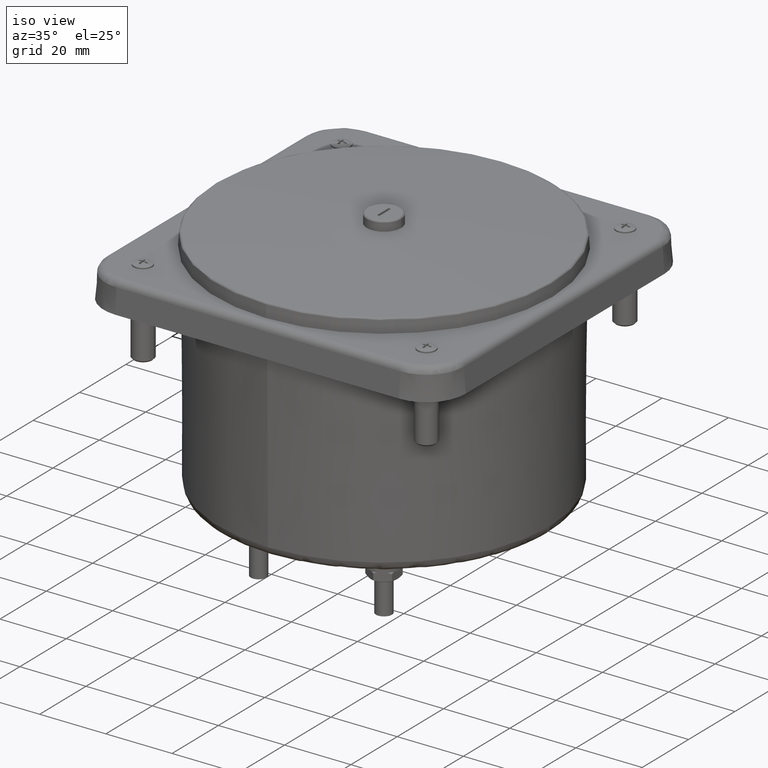
[diagram: clean part render]
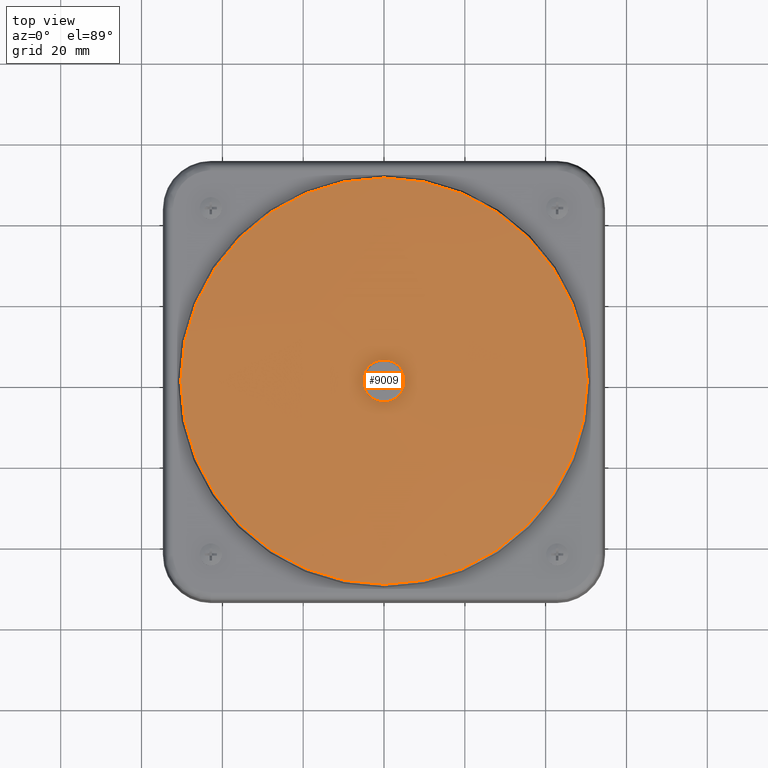
[diagram: tour spotlight — one face highlighted and labeled with its STEP entity id]
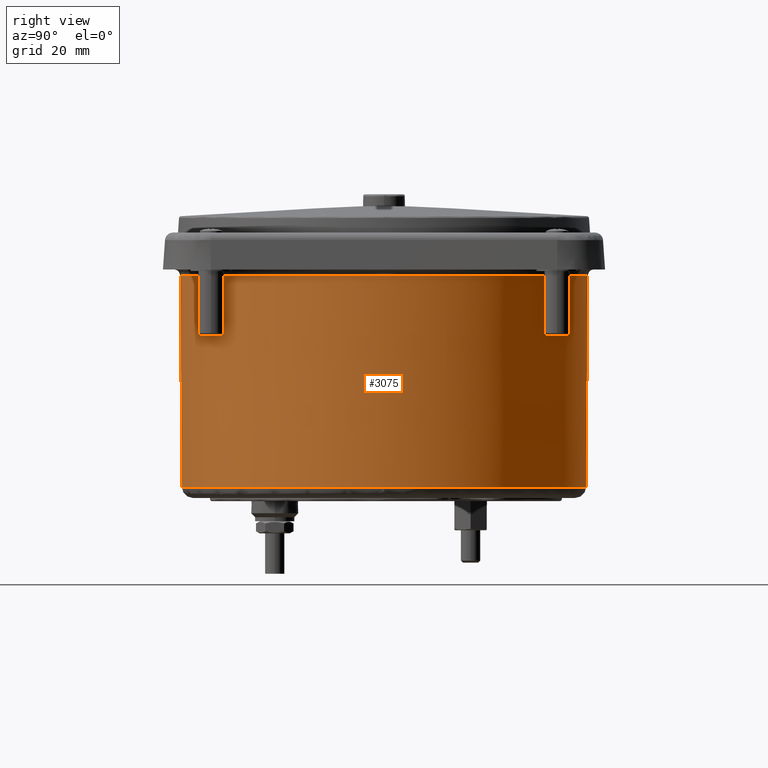
[diagram: tour spotlight — one face highlighted and labeled with its STEP entity id]
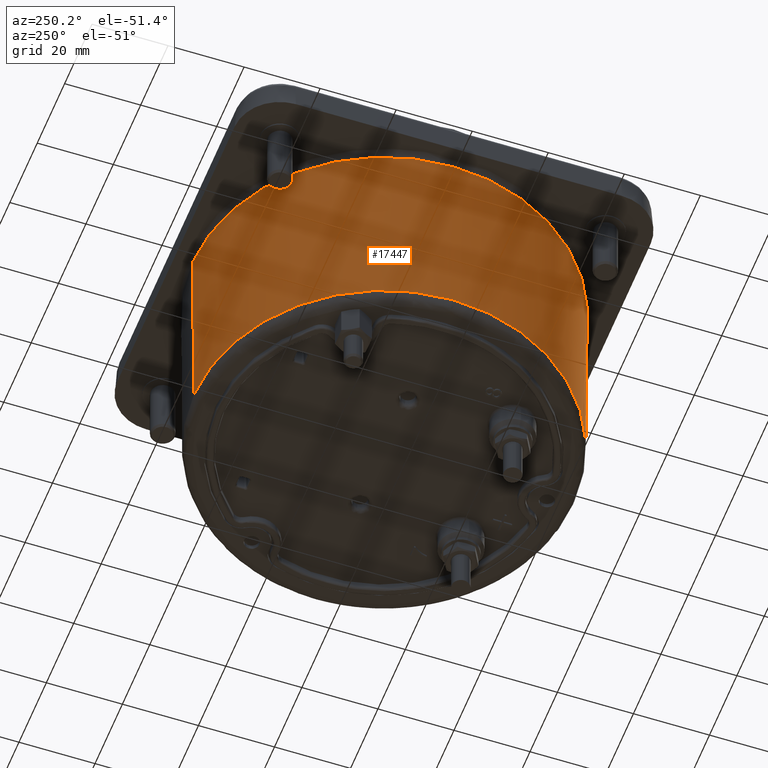
[diagram: tour spotlight — one face highlighted and labeled with its STEP entity id]
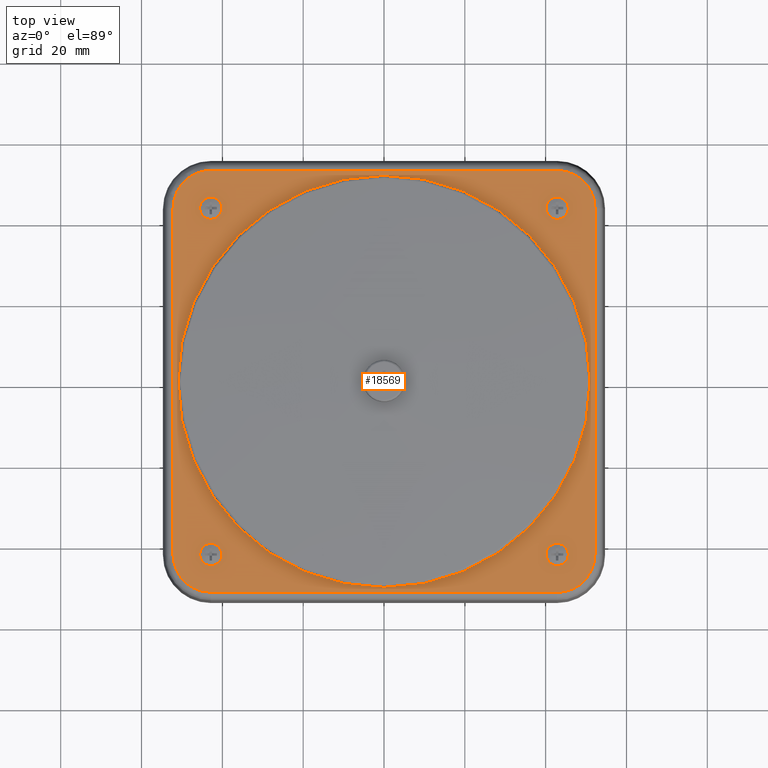
[diagram: tour spotlight — one face highlighted and labeled with its STEP entity id]
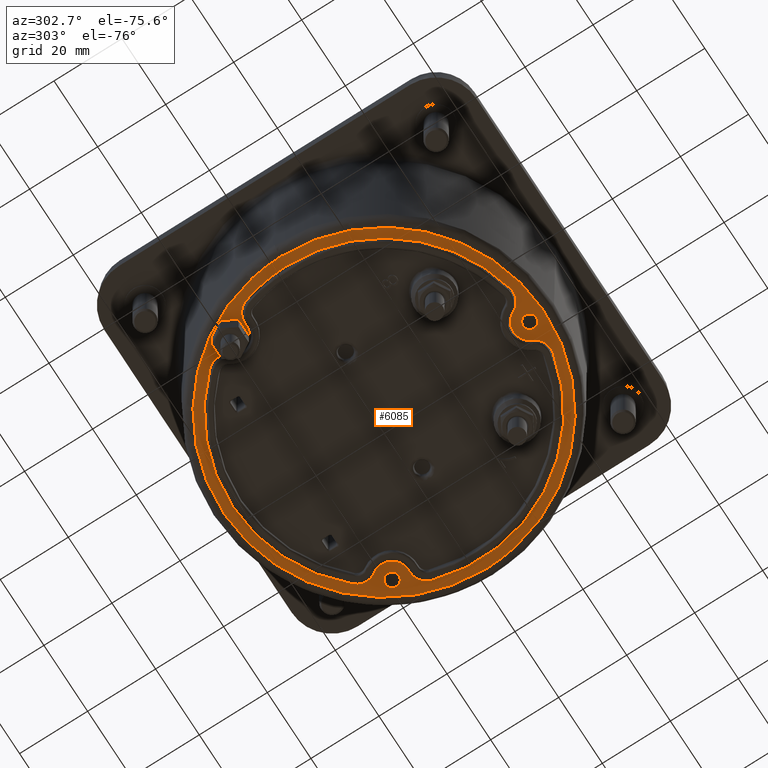
[diagram: tour spotlight — one face highlighted and labeled with its STEP entity id]
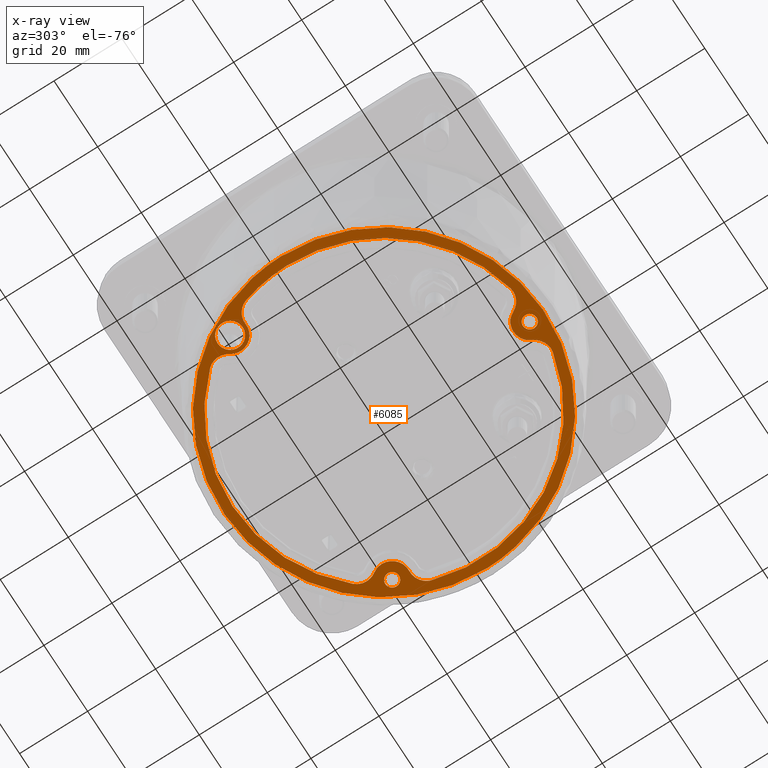
[diagram: x-ray of the same camera — body ghosted, this tour face saturated]
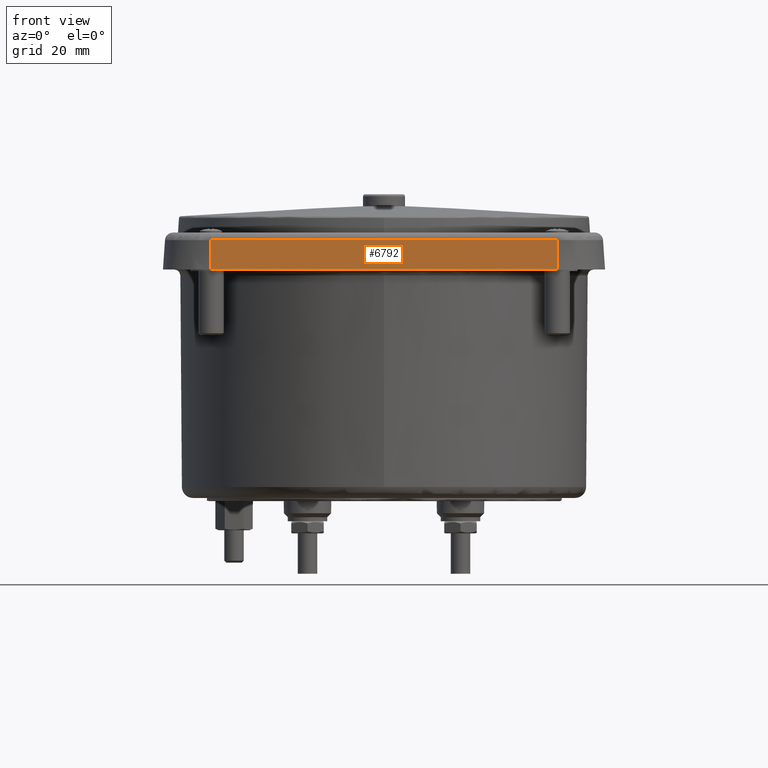
[diagram: tour spotlight — one face highlighted and labeled with its STEP entity id]
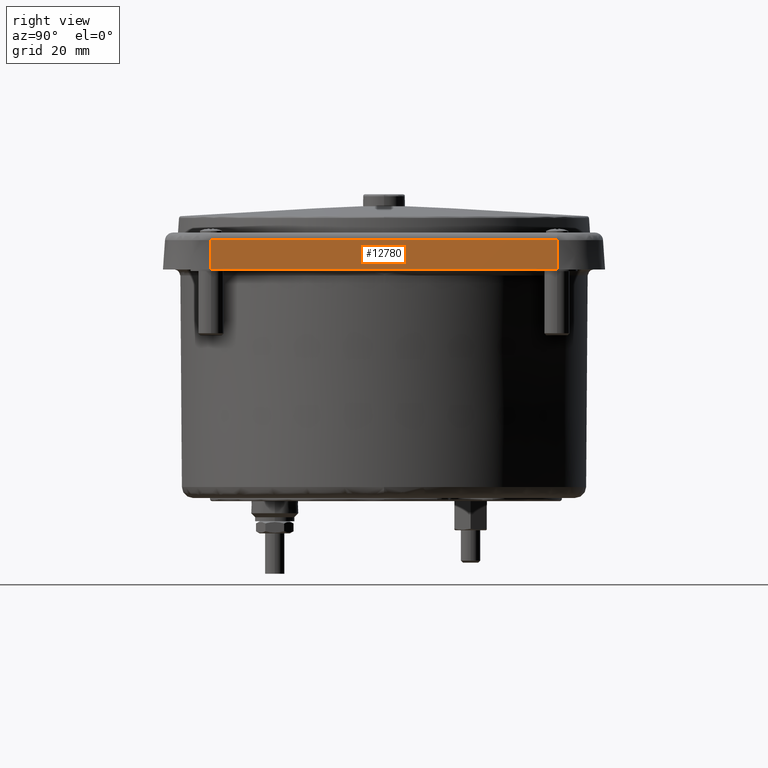
[diagram: tour spotlight — one face highlighted and labeled with its STEP entity id]
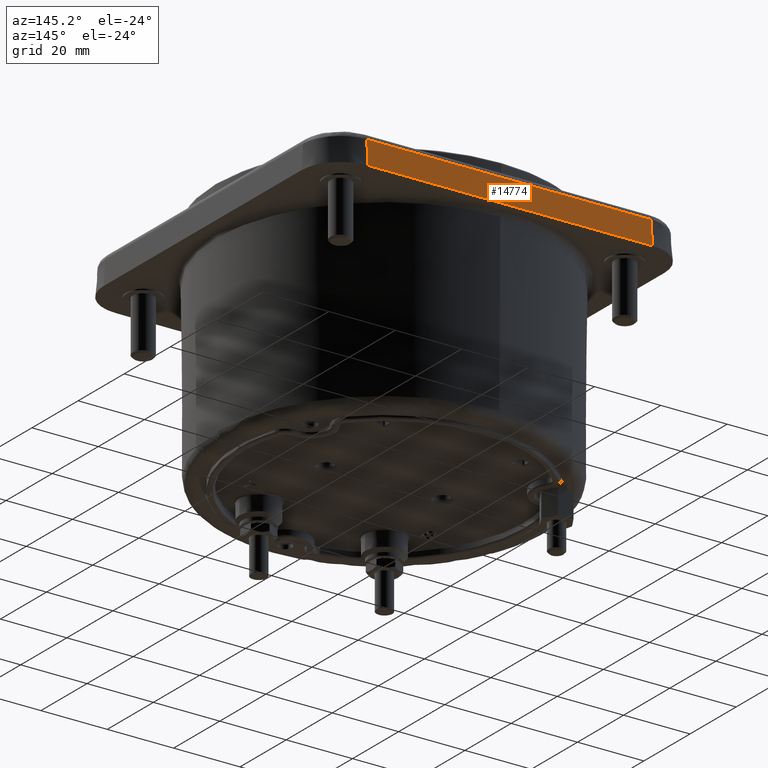
[diagram: tour spotlight — one face highlighted and labeled with its STEP entity id]
A machine part: a face-by-face anatomy tour. The part has 609 B-rep faces; the first image is the clean iso view, then the 8 largest visible faces are spotlighted one at a time (largest first), each with its STEP entity span.

Face 1 — top view, entity #9009. In plain terms, the highlighted face is a freeform B-spline surface patch.
Definition (entity closure, byte-faithful):
#89 = FACE_OUTER_BOUND ( 'NONE', #8196, .T. ) ;
#283 = CARTESIAN_POINT ( 'NONE',  ( -2.797412345512204431E-15, 2.800144193505869651E-15, 2.687014916833901701 ) ) ;
#598 =( BOUNDED_SURFACE ( )  B_SPLINE_SURFACE ( 3, 3, ( 
 ( #3892, #3475, #2239, #15593 ),
 ( #607, #9007, #13945, #7500 ),
 ( #9119, #1162, #944, #7717 ),
 ( #5863, #4328, #11081, #16144 ) ),
 .UNSPECIFIED., .F., .F., .T. ) 
 B_SPLINE_SURFACE_WITH_KNOTS ( ( 4, 4 ),
 ( 4, 4 ),
 ( 0.000000000000000000, 1.000000000000000000 ),
 ( 0.000000000000000000, 1.000000000000000000 ),
 .UNSPECIFIED. ) 
 GEOMETRIC_REPRESENTATION_ITEM ( )  RATIONAL_B_SPLINE_SURFACE ( (
 ( 1.000000000000000000, 0.9966479362200343362, 0.9966479362200343362, 1.000000000000000000),
 ( 0.9966247713919372808, 0.9932840215935377914, 0.9932840215935377914, 0.9966247713919372808),
 ( 0.9966247713919372808, 0.9932840215935377914, 0.9932840215935377914, 0.9966247713919372808),
 ( 1.000000000000000000, 0.9966479362200343362, 0.9966479362200343362, 1.000000000000000000) ) ) 
 REPRESENTATION_ITEM ( '' )  SURFACE ( )  );
#607 = CARTESIAN_POINT ( 'NONE',  ( -2.006480464329928548, 0.6722625191445581461, 2.621197702504792115 ) ) ;
#631 = EDGE_LOOP ( 'NONE', ( #15688, #6621 ) ) ;
#944 = CARTESIAN_POINT ( 'NONE',  ( 0.6710763123335966585, -0.6722625200133988121, 2.755620231806499287 ) ) ;
#1106 = AXIS2_PLACEMENT_3D ( 'NONE', #283, #13515, #7083 ) ;
#1159 = CIRCLE ( 'NONE', #19343, 1.979414863061023544 ) ;
#1162 = CARTESIAN_POINT ( 'NONE',  ( -0.6710763114588248479, -0.6722625208866379598, 2.755620231806499287 ) ) ;
#2096 = EDGE_CURVE ( 'NONE', #20935, #10411, #17907, .T. ) ;
#2239 = CARTESIAN_POINT ( 'NONE',  ( 0.6665500676251674417, 2.009980442710292081, 2.620269547074941752 ) ) ;
#2435 = CARTESIAN_POINT ( 'NONE',  ( -2.731847993664263613E-15, 3.005032793030688554E-15, 2.589870179541606365 ) ) ;
#2516 = DIRECTION ( 'NONE',  ( -1.000000000000000000, 0.000000000000000000, 0.000000000000000000 ) ) ;
#3475 = CARTESIAN_POINT ( 'NONE',  ( -0.6665500702406690348, 2.009980441842942334, 2.620269547074942196 ) ) ;
#3642 = VERTEX_POINT ( 'NONE', #11249 ) ;
#3892 = CARTESIAN_POINT ( 'NONE',  ( -1.992947253075695757, 2.009980440979953986, 2.486753664329780733 ) ) ;
#4328 = CARTESIAN_POINT ( 'NONE',  ( -0.6665500676251787660, -2.009980442710284532, 2.620269547074942196 ) ) ;
#4738 = AXIS2_PLACEMENT_3D ( 'NONE', #2435, #15004, #13235 ) ;
#4994 = ORIENTED_EDGE ( 'NONE', *, *, #20651, .F. ) ;
#5323 = CARTESIAN_POINT ( 'NONE',  ( 1.979414863061020879, 1.293615853963759587E-09, 2.589870179541606365 ) ) ;
#5666 = VERTEX_POINT ( 'NONE', #5323 ) ;
#5863 = CARTESIAN_POINT ( 'NONE',  ( -1.992947250460205266, -2.009980443573272435, 2.486753664329780733 ) ) ;
#6121 = ORIENTED_EDGE ( 'NONE', *, *, #6572, .F. ) ;
#6572 = EDGE_CURVE ( 'NONE', #5666, #3642, #1159, .T. ) ;
#6621 = ORIENTED_EDGE ( 'NONE', *, *, #19996, .T. ) ;
#7083 = DIRECTION ( 'NONE',  ( -1.000000000000000000, 0.000000000000000000, 0.000000000000000000 ) ) ;
#7500 = CARTESIAN_POINT ( 'NONE',  ( 2.006480463455134977, 0.6722625217554940580, 2.621197702504792115 ) ) ;
#7717 = CARTESIAN_POINT ( 'NONE',  ( 2.006480464329917446, -0.6722625191445504855, 2.621197702504792115 ) ) ;
#8069 = DIRECTION ( 'NONE',  ( 1.000000000000000000, 6.506258309890710155E-10, 0.000000000000000000 ) ) ;
#8196 = EDGE_LOOP ( 'NONE', ( #6121, #4994 ) ) ;
#8954 = CARTESIAN_POINT ( 'NONE',  ( -2.797412345512204431E-15, 2.800144193505869651E-15, 2.687014916833901701 ) ) ;
#9007 = CARTESIAN_POINT ( 'NONE',  ( -0.6710763123336078717, 0.6722625200134063617, 2.755620231806499287 ) ) ;
#9009 = ADVANCED_FACE ( 'NONE', ( #89, #13829 ), #598, .T. ) ;
#9119 = CARTESIAN_POINT ( 'NONE',  ( -2.006480463455146079, -0.6722625217554865085, 2.621197702504792115 ) ) ;
#10411 = VERTEX_POINT ( 'NONE', #18469 ) ;
#10701 = DIRECTION ( 'NONE',  ( 0.000000000000000000, 0.000000000000000000, -1.000000000000000000 ) ) ;
#10801 = DIRECTION ( 'NONE',  ( 0.000000000000000000, 0.000000000000000000, -1.000000000000000000 ) ) ;
#10995 = AXIS2_PLACEMENT_3D ( 'NONE', #8954, #10801, #2516 ) ;
#11081 = CARTESIAN_POINT ( 'NONE',  ( 0.6665500702406581546, -2.009980441842934784, 2.620269547074941752 ) ) ;
#11249 = CARTESIAN_POINT ( 'NONE',  ( -1.979414863061026209, -1.293610087389710220E-09, 2.589870179541606365 ) ) ;
#12463 = CARTESIAN_POINT ( 'NONE',  ( -2.731847993664263613E-15, 3.005032793030688554E-15, 2.589870179541606365 ) ) ;
#13235 = DIRECTION ( 'NONE',  ( 1.000000000000000000, 6.506258309890710155E-10, 0.000000000000000000 ) ) ;
#13515 = DIRECTION ( 'NONE',  ( 0.000000000000000000, 0.000000000000000000, -1.000000000000000000 ) ) ;
#13829 = FACE_BOUND ( 'NONE', #631, .T. ) ;
#13945 = CARTESIAN_POINT ( 'NONE',  ( 0.6710763114588135236, 0.6722625208866455093, 2.755620231806499287 ) ) ;
#14514 = CIRCLE ( 'NONE', #4738, 1.979414863061023544 ) ;
#15004 = DIRECTION ( 'NONE',  ( 0.000000000000000000, 0.000000000000000000, -1.000000000000000000 ) ) ;
#15593 = CARTESIAN_POINT ( 'NONE',  ( 1.992947250460194164, 2.009980443573279985, 2.486753664329780733 ) ) ;
#15688 = ORIENTED_EDGE ( 'NONE', *, *, #2096, .T. ) ;
#16144 = CARTESIAN_POINT ( 'NONE',  ( 1.992947253075684433, -2.009980440979946881, 2.486753664329780733 ) ) ;
#17681 = CIRCLE ( 'NONE', #10995, 0.2047791481690417192 ) ;
#17907 = CIRCLE ( 'NONE', #1106, 0.2047791481690417192 ) ;
#18469 = CARTESIAN_POINT ( 'NONE',  ( 0.2047791481690391657, 2.825222406339603895E-15, 2.687014916833901701 ) ) ;
#19343 = AXIS2_PLACEMENT_3D ( 'NONE', #12463, #10701, #8069 ) ;
#19996 = EDGE_CURVE ( 'NONE', #10411, #20935, #17681, .T. ) ;
#20651 = EDGE_CURVE ( 'NONE', #3642, #5666, #14514, .T. ) ;
#20935 = VERTEX_POINT ( 'NONE', #21046 ) ;
#21046 = CARTESIAN_POINT ( 'NONE',  ( -0.2047791481690447724, 2.800144193505869651E-15, 2.687014916833901701 ) ) ;

Face 2 — right view, entity #3075. In plain terms, the highlighted conical surface has half-angle 0.414 deg.
Definition (entity closure, byte-faithful):
#65 = VECTOR ( 'NONE', #5418, 39.37007874015748143 ) ;
#293 = CIRCLE ( 'NONE', #12520, 1.968925488800165491 ) ;
#444 = CARTESIAN_POINT ( 'NONE',  ( 4.780733988912455801E-15, -1.983827896406450630, 2.011482268730736322 ) ) ;
#639 = VERTEX_POINT ( 'NONE', #20257 ) ;
#651 = DIRECTION ( 'NONE',  ( 0.000000000000000000, 0.000000000000000000, 1.000000000000000000 ) ) ;
#845 = EDGE_CURVE ( 'NONE', #19513, #16822, #293, .T. ) ;
#2099 = CARTESIAN_POINT ( 'NONE',  ( 4.755600987370747928E-15, 2.237929876409763545E-15, 2.011482268730736322 ) ) ;
#2276 = ORIENTED_EDGE ( 'NONE', *, *, #16942, .T. ) ;
#2460 = CIRCLE ( 'NONE', #4916, 1.983827896406452851 ) ;
#3075 = ADVANCED_FACE ( 'NONE', ( #8281 ), #11521, .T. ) ;
#3123 = CIRCLE ( 'NONE', #8016, 1.968925488800165491 ) ;
#3250 = EDGE_CURVE ( 'NONE', #13108, #639, #2460, .T. ) ;
#3424 = DIRECTION ( 'NONE',  ( 1.000000000000000000, 6.506283845020279635E-10, 4.301193127181230591E-15 ) ) ;
#3662 = CARTESIAN_POINT ( 'NONE',  ( 4.780733988912455801E-15, -1.983827896406450630, 2.011482268730740319 ) ) ;
#3744 = DIRECTION ( 'NONE',  ( -0.000000000000000000, -0.000000000000000000, -1.000000000000000000 ) ) ;
#4198 = DIRECTION ( 'NONE',  ( 1.000000000000000000, 6.215758234642771035E-10, 1.377058966966231985E-15 ) ) ;
#4916 = AXIS2_PLACEMENT_3D ( 'NONE', #6859, #8489, #4198 ) ;
#5201 = CARTESIAN_POINT ( 'NONE',  ( 5.022770328009211004E-15, 1.968925488800167489, -0.04877558519283117788 ) ) ;
#5261 = AXIS2_PLACEMENT_3D ( 'NONE', #2099, #3744, #13905 ) ;
#5418 = DIRECTION ( 'NONE',  ( -4.479652220600120776E-26, -0.007233083831928652230, 0.9999738409069911516 ) ) ;
#6036 = ORIENTED_EDGE ( 'NONE', *, *, #14653, .T. ) ;
#6403 = VERTEX_POINT ( 'NONE', #444 ) ;
#6534 = DIRECTION ( 'NONE',  ( 0.000000000000000000, -1.000000000000000000, 1.377058966966232133E-16 ) ) ;
#6535 = ORIENTED_EDGE ( 'NONE', *, *, #845, .T. ) ;
#6859 = CARTESIAN_POINT ( 'NONE',  ( 4.755600987370747928E-15, 2.237929876409763545E-15, 2.011482268730736322 ) ) ;
#7331 = DIRECTION ( 'NONE',  ( 1.000000000000000000, 6.506283845020279635E-10, 4.301193127181230591E-15 ) ) ;
#7376 = DIRECTION ( 'NONE',  ( 8.857972514770755345E-19, 0.007233083831928788406, 0.9999738409069911516 ) ) ;
#7960 = ORIENTED_EDGE ( 'NONE', *, *, #3250, .T. ) ;
#8016 = AXIS2_PLACEMENT_3D ( 'NONE', #8459, #15139, #3424 ) ;
#8281 = FACE_OUTER_BOUND ( 'NONE', #8605, .T. ) ;
#8459 = CARTESIAN_POINT ( 'NONE',  ( 4.755600987370747928E-15, 2.237929876409763545E-15, -0.04877558519283117788 ) ) ;
#8489 = DIRECTION ( 'NONE',  ( -0.000000000000000000, -0.000000000000000000, -1.000000000000000000 ) ) ;
#8605 = EDGE_LOOP ( 'NONE', ( #6535, #20618, #6036, #7960, #2276, #16102 ) ) ;
#9139 = EDGE_CURVE ( 'NONE', #16822, #21262, #3123, .T. ) ;
#11521 = CONICAL_SURFACE ( 'NONE', #15395, 1.983827896406452851, 0.007233146902892905600 ) ;
#12168 = LINE ( 'NONE', #3662, #65 ) ;
#12520 = AXIS2_PLACEMENT_3D ( 'NONE', #17406, #651, #7331 ) ;
#12703 = CARTESIAN_POINT ( 'NONE',  ( 5.023682837251794677E-15, 1.983827896406455071, 2.011482268730736322 ) ) ;
#13108 = VERTEX_POINT ( 'NONE', #12703 ) ;
#13706 = LINE ( 'NONE', #16906, #15694 ) ;
#13799 = CARTESIAN_POINT ( 'NONE',  ( 4.780733988958603375E-15, -1.968925488800163270, -0.04877558519283117788 ) ) ;
#13905 = DIRECTION ( 'NONE',  ( 1.000000000000000000, 6.506283845020280669E-10, 1.377058966966231985E-15 ) ) ;
#14653 = EDGE_CURVE ( 'NONE', #21262, #13108, #13706, .T. ) ;
#15139 = DIRECTION ( 'NONE',  ( 0.000000000000000000, 0.000000000000000000, 1.000000000000000000 ) ) ;
#15395 = AXIS2_PLACEMENT_3D ( 'NONE', #21235, #16284, #6534 ) ;
#15694 = VECTOR ( 'NONE', #7376, 39.37007874015748143 ) ;
#16102 = ORIENTED_EDGE ( 'NONE', *, *, #17856, .F. ) ;
#16284 = DIRECTION ( 'NONE',  ( -4.479769407304705096E-26, 6.885294834831169295E-17, 1.000000000000000000 ) ) ;
#16822 = VERTEX_POINT ( 'NONE', #17910 ) ;
#16906 = CARTESIAN_POINT ( 'NONE',  ( 5.023682837251794677E-15, 1.983827896406455071, 2.011482268730739875 ) ) ;
#16942 = EDGE_CURVE ( 'NONE', #639, #6403, #20667, .T. ) ;
#17406 = CARTESIAN_POINT ( 'NONE',  ( 4.755600987370747928E-15, 2.237929876409763545E-15, -0.04877558519283117788 ) ) ;
#17856 = EDGE_CURVE ( 'NONE', #19513, #6403, #12168, .T. ) ;
#17910 = CARTESIAN_POINT ( 'NONE',  ( 1.968925488791611444, 1.281041289031055014E-09, -0.04877558519282694516 ) ) ;
#19513 = VERTEX_POINT ( 'NONE', #13799 ) ;
#20257 = CARTESIAN_POINT ( 'NONE',  ( 1.983827896406457514, 1.309948189355410421E-09, 2.011482268730736322 ) ) ;
#20618 = ORIENTED_EDGE ( 'NONE', *, *, #9139, .T. ) ;
#20667 = CIRCLE ( 'NONE', #5261, 1.983827896406452851 ) ;
#21235 = CARTESIAN_POINT ( 'NONE',  ( 4.780733988912455801E-15, 2.237929876356846361E-15, 2.011482268730740319 ) ) ;
#21262 = VERTEX_POINT ( 'NONE', #5201 ) ;

Face 3 — auxiliary view, entity #17447. In plain terms, the highlighted conical surface has half-angle 0.414 deg.
Definition (entity closure, byte-faithful):
#65 = VECTOR ( 'NONE', #5418, 39.37007874015748143 ) ;
#157 = DIRECTION ( 'NONE',  ( 1.000000000000000000, 6.506283845020280669E-10, 1.377058966966231985E-15 ) ) ;
#444 = CARTESIAN_POINT ( 'NONE',  ( 4.780733988912455801E-15, -1.983827896406450630, 2.011482268730736322 ) ) ;
#888 = CARTESIAN_POINT ( 'NONE',  ( -1.983827896406448188, -1.309943466930820863E-09, 2.011482268730736322 ) ) ;
#1311 = CARTESIAN_POINT ( 'NONE',  ( 4.780733988912455801E-15, 2.237929876356846361E-15, 2.011482268730740319 ) ) ;
#1413 = FACE_OUTER_BOUND ( 'NONE', #13463, .T. ) ;
#1857 = ORIENTED_EDGE ( 'NONE', *, *, #13920, .T. ) ;
#3662 = CARTESIAN_POINT ( 'NONE',  ( 4.780733988912455801E-15, -1.983827896406450630, 2.011482268730740319 ) ) ;
#4138 = ORIENTED_EDGE ( 'NONE', *, *, #17856, .T. ) ;
#4247 = CARTESIAN_POINT ( 'NONE',  ( 4.755600987370747928E-15, 2.237929876409763545E-15, -0.04877558519283117788 ) ) ;
#5093 = CARTESIAN_POINT ( 'NONE',  ( 4.755600987370747928E-15, 2.237929876409763545E-15, 2.011482268730736322 ) ) ;
#5196 = DIRECTION ( 'NONE',  ( -0.000000000000000000, -0.000000000000000000, -1.000000000000000000 ) ) ;
#5201 = CARTESIAN_POINT ( 'NONE',  ( 5.022770328009211004E-15, 1.968925488800167489, -0.04877558519283117788 ) ) ;
#5418 = DIRECTION ( 'NONE',  ( -4.479652220600120776E-26, -0.007233083831928652230, 0.9999738409069911516 ) ) ;
#5887 = DIRECTION ( 'NONE',  ( 1.000000000000000000, 6.506283845020279635E-10, 4.301193127181230591E-15 ) ) ;
#6161 = CIRCLE ( 'NONE', #13811, 1.983827896406452851 ) ;
#6403 = VERTEX_POINT ( 'NONE', #444 ) ;
#7201 = CARTESIAN_POINT ( 'NONE',  ( 4.755600987370747928E-15, 2.237929876409763545E-15, -0.04877558519283117788 ) ) ;
#7376 = DIRECTION ( 'NONE',  ( 8.857972514770755345E-19, 0.007233083831928788406, 0.9999738409069911516 ) ) ;
#7408 = EDGE_CURVE ( 'NONE', #6403, #10658, #9186, .T. ) ;
#7530 = DIRECTION ( 'NONE',  ( 0.000000000000000000, 0.000000000000000000, 1.000000000000000000 ) ) ;
#7807 = AXIS2_PLACEMENT_3D ( 'NONE', #5093, #5196, #157 ) ;
#8083 = DIRECTION ( 'NONE',  ( 0.000000000000000000, -1.000000000000000000, 1.377058966966232133E-16 ) ) ;
#9186 = CIRCLE ( 'NONE', #7807, 1.983827896406452851 ) ;
#9938 = DIRECTION ( 'NONE',  ( 0.000000000000000000, 0.000000000000000000, 1.000000000000000000 ) ) ;
#10125 = EDGE_CURVE ( 'NONE', #21262, #11427, #14331, .T. ) ;
#10658 = VERTEX_POINT ( 'NONE', #888 ) ;
#11427 = VERTEX_POINT ( 'NONE', #11746 ) ;
#11651 = DIRECTION ( 'NONE',  ( -4.479769407304705096E-26, 6.885294834831169295E-17, 1.000000000000000000 ) ) ;
#11746 = CARTESIAN_POINT ( 'NONE',  ( -1.968925488791601897, -1.281036572047472376E-09, -0.04877558519283541061 ) ) ;
#12092 = DIRECTION ( 'NONE',  ( -0.000000000000000000, -0.000000000000000000, -1.000000000000000000 ) ) ;
#12168 = LINE ( 'NONE', #3662, #65 ) ;
#12275 = EDGE_CURVE ( 'NONE', #10658, #13108, #6161, .T. ) ;
#12703 = CARTESIAN_POINT ( 'NONE',  ( 5.023682837251794677E-15, 1.983827896406455071, 2.011482268730736322 ) ) ;
#13108 = VERTEX_POINT ( 'NONE', #12703 ) ;
#13463 = EDGE_LOOP ( 'NONE', ( #17931, #15792, #1857, #4138, #20163, #16365 ) ) ;
#13671 = AXIS2_PLACEMENT_3D ( 'NONE', #1311, #11651, #8083 ) ;
#13706 = LINE ( 'NONE', #16906, #15694 ) ;
#13799 = CARTESIAN_POINT ( 'NONE',  ( 4.780733988958603375E-15, -1.968925488800163270, -0.04877558519283117788 ) ) ;
#13811 = AXIS2_PLACEMENT_3D ( 'NONE', #17166, #12092, #18926 ) ;
#13920 = EDGE_CURVE ( 'NONE', #11427, #19513, #19859, .T. ) ;
#14331 = CIRCLE ( 'NONE', #16098, 1.968925488800165491 ) ;
#14394 = CONICAL_SURFACE ( 'NONE', #13671, 1.983827896406452851, 0.007233146902892905600 ) ;
#14653 = EDGE_CURVE ( 'NONE', #21262, #13108, #13706, .T. ) ;
#15694 = VECTOR ( 'NONE', #7376, 39.37007874015748143 ) ;
#15792 = ORIENTED_EDGE ( 'NONE', *, *, #10125, .T. ) ;
#16098 = AXIS2_PLACEMENT_3D ( 'NONE', #4247, #7530, #5887 ) ;
#16365 = ORIENTED_EDGE ( 'NONE', *, *, #12275, .T. ) ;
#16906 = CARTESIAN_POINT ( 'NONE',  ( 5.023682837251794677E-15, 1.983827896406455071, 2.011482268730739875 ) ) ;
#17166 = CARTESIAN_POINT ( 'NONE',  ( 4.755600987370747928E-15, 2.237929876409763545E-15, 2.011482268730736322 ) ) ;
#17397 = AXIS2_PLACEMENT_3D ( 'NONE', #7201, #9938, #18305 ) ;
#17447 = ADVANCED_FACE ( 'NONE', ( #1413 ), #14394, .T. ) ;
#17856 = EDGE_CURVE ( 'NONE', #19513, #6403, #12168, .T. ) ;
#17931 = ORIENTED_EDGE ( 'NONE', *, *, #14653, .F. ) ;
#18305 = DIRECTION ( 'NONE',  ( 1.000000000000000000, 6.506283845020279635E-10, 4.301193127181230591E-15 ) ) ;
#18926 = DIRECTION ( 'NONE',  ( 1.000000000000000000, 6.506301608588673638E-10, 1.377058966966231985E-15 ) ) ;
#19513 = VERTEX_POINT ( 'NONE', #13799 ) ;
#19859 = CIRCLE ( 'NONE', #17397, 1.968925488800165491 ) ;
#20163 = ORIENTED_EDGE ( 'NONE', *, *, #7408, .T. ) ;
#21262 = VERTEX_POINT ( 'NONE', #5201 ) ;

Face 4 — top view, entity #18569. In plain terms, the highlighted planar face has unit normal (0, 0, 1).
Definition (entity closure, byte-faithful):
#20 = VERTEX_POINT ( 'NONE', #467 ) ;
#296 = EDGE_CURVE ( 'NONE', #1980, #20658, #5275, .T. ) ;
#467 = CARTESIAN_POINT ( 'NONE',  ( -2.054926753004763906, 1.687007872678763620, 2.430346456692913382 ) ) ;
#623 = CARTESIAN_POINT ( 'NONE',  ( 1.687007872918133922, 1.687007875113362143, 2.430346456692913382 ) ) ;
#865 = VERTEX_POINT ( 'NONE', #989 ) ;
#961 = ORIENTED_EDGE ( 'NONE', *, *, #14487, .F. ) ;
#989 = CARTESIAN_POINT ( 'NONE',  ( 1.795275589453567022, 1.687007875113362143, 2.430346456692913382 ) ) ;
#1183 = DIRECTION ( 'NONE',  ( 1.000000000000000000, 6.506258309890710155E-10, 0.000000000000000000 ) ) ;
#1187 = LINE ( 'NONE', #2822, #4266 ) ;
#1320 = EDGE_CURVE ( 'NONE', #5754, #2529, #1187, .T. ) ;
#1615 = VERTEX_POINT ( 'NONE', #14693 ) ;
#1632 = FACE_BOUND ( 'NONE', #12135, .T. ) ;
#1676 = CIRCLE ( 'NONE', #16705, 0.1082677165354331700 ) ;
#1684 = DIRECTION ( 'NONE',  ( -0.000000000000000000, -0.000000000000000000, -1.000000000000000000 ) ) ;
#1721 = VERTEX_POINT ( 'NONE', #2674 ) ;
#1980 = VERTEX_POINT ( 'NONE', #8078 ) ;
#2272 = DIRECTION ( 'NONE',  ( -0.000000000000000000, -0.000000000000000000, -1.000000000000000000 ) ) ;
#2290 = EDGE_CURVE ( 'NONE', #20658, #1721, #16130, .T. ) ;
#2529 = VERTEX_POINT ( 'NONE', #3300 ) ;
#2590 = AXIS2_PLACEMENT_3D ( 'NONE', #20191, #15033, #21402 ) ;
#2674 = CARTESIAN_POINT ( 'NONE',  ( 1.687007875113354372, -1.795275589453567022, 2.430346456692913382 ) ) ;
#2693 = ORIENTED_EDGE ( 'NONE', *, *, #5205, .T. ) ;
#2698 = DIRECTION ( 'NONE',  ( 1.000000000000000000, 0.000000000000000000, 0.000000000000000000 ) ) ;
#2737 = CARTESIAN_POINT ( 'NONE',  ( 2.054926753308295329, -2.153543305749622050, 2.430346456692913382 ) ) ;
#2822 = CARTESIAN_POINT ( 'NONE',  ( 1.687007875352732222, -2.054926750809535463, 2.430346456692913382 ) ) ;
#2859 = ORIENTED_EDGE ( 'NONE', *, *, #9650, .T. ) ;
#2860 = EDGE_LOOP ( 'NONE', ( #17880, #10084, #2859 ) ) ;
#3031 = EDGE_CURVE ( 'NONE', #1615, #9566, #19268, .T. ) ;
#3055 = EDGE_CURVE ( 'NONE', #3910, #15907, #8055, .T. ) ;
#3150 = EDGE_CURVE ( 'NONE', #865, #3910, #20681, .T. ) ;
#3181 = CARTESIAN_POINT ( 'NONE',  ( 2.054926753144983742, -1.902529761494448968, 2.430346456692913382 ) ) ;
#3300 = CARTESIAN_POINT ( 'NONE',  ( -1.687007872678763620, -2.054926753004755913, 2.430346456692913382 ) ) ;
#3471 = FACE_BOUND ( 'NONE', #19404, .T. ) ;
#3592 = DIRECTION ( 'NONE',  ( -8.856124801240861388E-26, 1.361170139211503758E-16, -1.000000000000000000 ) ) ;
#3838 = CIRCLE ( 'NONE', #10794, 0.1082677165354331700 ) ;
#3910 = VERTEX_POINT ( 'NONE', #16718 ) ;
#4045 = DIRECTION ( 'NONE',  ( -6.506258309890710155E-10, 1.000000000000000000, 0.000000000000000000 ) ) ;
#4051 = CARTESIAN_POINT ( 'NONE',  ( -2.054926753004763906, 1.687007872678763620, 2.430346456692913382 ) ) ;
#4176 = DIRECTION ( 'NONE',  ( 1.000000000000000000, 0.000000000000000000, 0.000000000000000000 ) ) ;
#4266 = VECTOR ( 'NONE', #6107, 39.37007874015748143 ) ;
#4475 = VERTEX_POINT ( 'NONE', #18997 ) ;
#4766 = CARTESIAN_POINT ( 'NONE',  ( 1.687007872678756071, 2.054926753004759910, 2.430346456692913382 ) ) ;
#4911 = CARTESIAN_POINT ( 'NONE',  ( -3.005032793030688554E-15, 2.458663194297838277E-15, 2.430346456692913382 ) ) ;
#4934 = CARTESIAN_POINT ( 'NONE',  ( 1.687007875352732222, -2.054926750809535463, 2.430346456692913382 ) ) ;
#5016 = VERTEX_POINT ( 'NONE', #8311 ) ;
#5130 = EDGE_CURVE ( 'NONE', #16634, #11959, #14539, .T. ) ;
#5205 = EDGE_CURVE ( 'NONE', #1721, #1980, #10674, .T. ) ;
#5275 = CIRCLE ( 'NONE', #18227, 0.1082677165354331700 ) ;
#5280 = DIRECTION ( 'NONE',  ( 1.000000000000000000, 0.000000000000000000, 0.000000000000000000 ) ) ;
#5333 = ORIENTED_EDGE ( 'NONE', *, *, #13342, .F. ) ;
#5754 = VERTEX_POINT ( 'NONE', #12405 ) ;
#5806 = CARTESIAN_POINT ( 'NONE',  ( -1.687007872918141693, -1.578740158577921049, 2.430346456692913382 ) ) ;
#5911 = LINE ( 'NONE', #2737, #9431 ) ;
#5921 = ORIENTED_EDGE ( 'NONE', *, *, #17139, .F. ) ;
#5988 = DIRECTION ( 'NONE',  ( -0.000000000000000000, -0.000000000000000000, -1.000000000000000000 ) ) ;
#6065 = VECTOR ( 'NONE', #1183, 39.37007874015748143 ) ;
#6107 = DIRECTION ( 'NONE',  ( -1.000000000000000000, -6.506258309890710155E-10, 0.000000000000000000 ) ) ;
#6363 = CARTESIAN_POINT ( 'NONE',  ( 1.902529764168426230, -2.054926750669313407, 2.430346456692913382 ) ) ;
#6521 = AXIS2_PLACEMENT_3D ( 'NONE', #20281, #13789, #5280 ) ;
#6598 = CARTESIAN_POINT ( 'NONE',  ( 1.687007872918133922, 1.795275591648795466, 2.430346456692913382 ) ) ;
#6662 = FACE_BOUND ( 'NONE', #19717, .T. ) ;
#6876 = FACE_BOUND ( 'NONE', #7292, .T. ) ;
#6884 = DIRECTION ( 'NONE',  ( 0.000000000000000000, 1.000000000000000000, 1.361170139211504745E-16 ) ) ;
#6942 = EDGE_LOOP ( 'NONE', ( #7080, #9554, #5333, #961, #18859, #5921, #15999, #10591 ) ) ;
#7032 = DIRECTION ( 'NONE',  ( 0.000000000000000000, 1.000000000000000000, 1.361170139211504745E-16 ) ) ;
#7080 = ORIENTED_EDGE ( 'NONE', *, *, #7366, .F. ) ;
#7292 = EDGE_LOOP ( 'NONE', ( #20827, #16934 ) ) ;
#7366 = EDGE_CURVE ( 'NONE', #21128, #4475, #13062, .T. ) ;
#7663 = CARTESIAN_POINT ( 'NONE',  ( -1.902529764168430226, 2.054926750669312963, 2.430346456692913382 ) ) ;
#8034 = CARTESIAN_POINT ( 'NONE',  ( 2.054926750669306301, 1.902529764168430892, 2.430346456692913382 ) ) ;
#8055 = CIRCLE ( 'NONE', #10473, 0.1082677165354331700 ) ;
#8078 = CARTESIAN_POINT ( 'NONE',  ( 1.687007875113354372, -1.578740156382701043, 2.430346456692913382 ) ) ;
#8291 = CARTESIAN_POINT ( 'NONE',  ( -1.687007872918141693, -1.795275591648787472, 2.430346456692913382 ) ) ;
#8311 = CARTESIAN_POINT ( 'NONE',  ( 2.054926750809535463, 1.687007875352740216, 2.430346456692913382 ) ) ;
#8394 = AXIS2_PLACEMENT_3D ( 'NONE', #11637, #11316, #18050 ) ;
#8405 = AXIS2_PLACEMENT_3D ( 'NONE', #18613, #3592, #6884 ) ;
#8721 = DIRECTION ( 'NONE',  ( 1.000000000000000000, 0.000000000000000000, 0.000000000000000000 ) ) ;
#9206 = CIRCLE ( 'NONE', #2590, 0.1082677165354331700 ) ;
#9263 = ORIENTED_EDGE ( 'NONE', *, *, #5130, .T. ) ;
#9318 = EDGE_CURVE ( 'NONE', #14306, #12008, #18878, .T. ) ;
#9431 = VECTOR ( 'NONE', #12342, 39.37007874015748143 ) ;
#9554 = ORIENTED_EDGE ( 'NONE', *, *, #10663, .F. ) ;
#9566 = VERTEX_POINT ( 'NONE', #19738 ) ;
#9650 = EDGE_CURVE ( 'NONE', #13287, #14306, #10451, .T. ) ;
#9678 = CARTESIAN_POINT ( 'NONE',  ( -1.687007875352740216, 2.054926750809539460, 2.430346456692913382 ) ) ;
#9728 = CARTESIAN_POINT ( 'NONE',  ( 1.687007875113354372, -1.687007872918133922, 2.430346456692913382 ) ) ;
#9731 = CARTESIAN_POINT ( 'NONE',  ( -1.687007875113362143, 1.687007872918141693, 2.430346456692913382 ) ) ;
#9750 = AXIS2_PLACEMENT_3D ( 'NONE', #9731, #17997, #16224 ) ;
#9809 = DIRECTION ( 'NONE',  ( 0.000000000000000000, 0.000000000000000000, 1.000000000000000000 ) ) ;
#9817 = VERTEX_POINT ( 'NONE', #15433 ) ;
#9839 = DIRECTION ( 'NONE',  ( -0.000000000000000000, -0.000000000000000000, -1.000000000000000000 ) ) ;
#9890 = EDGE_CURVE ( 'NONE', #5016, #9817, #5911, .T. ) ;
#10079 = CARTESIAN_POINT ( 'NONE',  ( 2.054926750809535463, 1.687007875352740216, 2.430346456692913382 ) ) ;
#10084 = ORIENTED_EDGE ( 'NONE', *, *, #12965, .T. ) ;
#10440 = AXIS2_PLACEMENT_3D ( 'NONE', #13698, #17007, #11932 ) ;
#10451 = CIRCLE ( 'NONE', #9750, 0.1082677165354331700 ) ;
#10473 = AXIS2_PLACEMENT_3D ( 'NONE', #16846, #2272, #8721 ) ;
#10591 = ORIENTED_EDGE ( 'NONE', *, *, #14534, .F. ) ;
#10663 = EDGE_CURVE ( 'NONE', #20, #21128, #11183, .T. ) ;
#10674 = CIRCLE ( 'NONE', #20151, 0.1082677165354331700 ) ;
#10690 = CARTESIAN_POINT ( 'NONE',  ( -1.578740158577929042, 1.687007872918141693, 2.430346456692913382 ) ) ;
#10696 = CARTESIAN_POINT ( 'NONE',  ( -1.578740156382708593, -1.687007875113354372, 2.430346456692913382 ) ) ;
#10716 = CIRCLE ( 'NONE', #13519, 2.006984957256527480 ) ;
#10794 = AXIS2_PLACEMENT_3D ( 'NONE', #623, #5988, #19359 ) ;
#10810 = VERTEX_POINT ( 'NONE', #11244 ) ;
#11002 = ORIENTED_EDGE ( 'NONE', *, *, #15453, .T. ) ;
#11026 = CARTESIAN_POINT ( 'NONE',  ( -1.687007875352740216, 2.054926750809539460, 2.430346456692913382 ) ) ;
#11096 = DIRECTION ( 'NONE',  ( -0.000000000000000000, -0.000000000000000000, -1.000000000000000000 ) ) ;
#11183 =( BOUNDED_CURVE ( )  B_SPLINE_CURVE ( 3, ( #4051, #19289, #7663, #11026 ),
 .UNSPECIFIED., .F., .T. ) 
 B_SPLINE_CURVE_WITH_KNOTS ( ( 4, 4 ),
 ( 0.000000000000000000, 1.000000000000000000 ),
 .UNSPECIFIED. ) 
 CURVE ( )  GEOMETRIC_REPRESENTATION_ITEM ( )  RATIONAL_B_SPLINE_CURVE ( ( 1.000000000000000000, 0.8047378541243679351, 0.8047378541243679351, 1.000000000000000000 ) ) 
 REPRESENTATION_ITEM ( '' )  );
#11244 = CARTESIAN_POINT ( 'NONE',  ( -2.054926750809539460, -1.687007875352732222, 2.430346456692913382 ) ) ;
#11316 = DIRECTION ( 'NONE',  ( -0.000000000000000000, -0.000000000000000000, -1.000000000000000000 ) ) ;
#11637 = CARTESIAN_POINT ( 'NONE',  ( 1.687007872918133922, 1.687007875113362143, 2.430346456692913382 ) ) ;
#11743 =( BOUNDED_CURVE ( )  B_SPLINE_CURVE ( 3, ( #16683, #20082, #18230, #19981 ),
 .UNSPECIFIED., .F., .T. ) 
 B_SPLINE_CURVE_WITH_KNOTS ( ( 4, 4 ),
 ( 0.000000000000000000, 1.000000000000000000 ),
 .UNSPECIFIED. ) 
 CURVE ( )  GEOMETRIC_REPRESENTATION_ITEM ( )  RATIONAL_B_SPLINE_CURVE ( ( 1.000000000000000000, 0.8047378541243627170, 0.8047378541243627170, 1.000000000000000000 ) ) 
 REPRESENTATION_ITEM ( '' )  );
#11932 = DIRECTION ( 'NONE',  ( 1.000000000000000000, 0.000000000000000000, 0.000000000000000000 ) ) ;
#11959 = VERTEX_POINT ( 'NONE', #5806 ) ;
#12008 = VERTEX_POINT ( 'NONE', #10690 ) ;
#12054 = CARTESIAN_POINT ( 'NONE',  ( -1.687007872918141693, -1.687007875113354372, 2.430346456692913382 ) ) ;
#12135 = EDGE_LOOP ( 'NONE', ( #14421, #13052, #9263 ) ) ;
#12342 = DIRECTION ( 'NONE',  ( 6.506258309890710155E-10, -1.000000000000000000, 0.000000000000000000 ) ) ;
#12405 = CARTESIAN_POINT ( 'NONE',  ( 1.687007875352732222, -2.054926750809535463, 2.430346456692913382 ) ) ;
#12461 =( BOUNDED_CURVE ( )  B_SPLINE_CURVE ( 3, ( #16791, #21400, #8034, #10079 ),
 .UNSPECIFIED., .F., .F. ) 
 B_SPLINE_CURVE_WITH_KNOTS ( ( 4, 4 ),
 ( 0.000000000000000000, 1.000000000000000000 ),
 .UNSPECIFIED. ) 
 CURVE ( )  GEOMETRIC_REPRESENTATION_ITEM ( )  RATIONAL_B_SPLINE_CURVE ( ( 1.000000000000000000, 0.8047378541243653816, 0.8047378541243653816, 1.000000000000000000 ) ) 
 REPRESENTATION_ITEM ( '' )  );
#12908 = CARTESIAN_POINT ( 'NONE',  ( 1.687007875113354372, -1.687007872918133922, 2.430346456692913382 ) ) ;
#12965 = EDGE_CURVE ( 'NONE', #12008, #13287, #14891, .T. ) ;
#13052 = ORIENTED_EDGE ( 'NONE', *, *, #14102, .T. ) ;
#13062 = LINE ( 'NONE', #4766, #6065 ) ;
#13203 = FACE_OUTER_BOUND ( 'NONE', #6942, .T. ) ;
#13224 = CARTESIAN_POINT ( 'NONE',  ( 2.054926753004755913, -1.687007872678756071, 2.430346456692913382 ) ) ;
#13287 = VERTEX_POINT ( 'NONE', #20595 ) ;
#13342 = EDGE_CURVE ( 'NONE', #10810, #20, #20478, .T. ) ;
#13344 = CARTESIAN_POINT ( 'NONE',  ( 1.795275591648787472, -1.687007872918133922, 2.430346456692913382 ) ) ;
#13519 = AXIS2_PLACEMENT_3D ( 'NONE', #17220, #15787, #7032 ) ;
#13683 = EDGE_CURVE ( 'NONE', #9566, #1615, #10716, .T. ) ;
#13698 = CARTESIAN_POINT ( 'NONE',  ( -1.687007875113362143, 1.687007872918141693, 2.430346456692913382 ) ) ;
#13789 = DIRECTION ( 'NONE',  ( -0.000000000000000000, -0.000000000000000000, -1.000000000000000000 ) ) ;
#13929 = CARTESIAN_POINT ( 'NONE',  ( -1.687007875113362143, 1.795275589453575016, 2.430346456692913382 ) ) ;
#14102 = EDGE_CURVE ( 'NONE', #20942, #16634, #1676, .T. ) ;
#14306 = VERTEX_POINT ( 'NONE', #13929 ) ;
#14421 = ORIENTED_EDGE ( 'NONE', *, *, #20414, .T. ) ;
#14487 = EDGE_CURVE ( 'NONE', #2529, #10810, #11743, .T. ) ;
#14534 = EDGE_CURVE ( 'NONE', #4475, #5016, #12461, .T. ) ;
#14539 = CIRCLE ( 'NONE', #6521, 0.1082677165354331700 ) ;
#14693 = CARTESIAN_POINT ( 'NONE',  ( -2.486063223280154467E-15, -2.006984957256524815, 2.430346456692074497 ) ) ;
#14891 = CIRCLE ( 'NONE', #18080, 0.1082677165354331700 ) ;
#15026 = DIRECTION ( 'NONE',  ( 1.000000000000000000, 0.000000000000000000, 0.000000000000000000 ) ) ;
#15033 = DIRECTION ( 'NONE',  ( -0.000000000000000000, -0.000000000000000000, -1.000000000000000000 ) ) ;
#15181 = PLANE ( 'NONE',  #16871 ) ;
#15433 = CARTESIAN_POINT ( 'NONE',  ( 2.054926753004755913, -1.687007872678756071, 2.430346456692913382 ) ) ;
#15453 = EDGE_CURVE ( 'NONE', #15907, #865, #3838, .T. ) ;
#15787 = DIRECTION ( 'NONE',  ( -8.856124801240861388E-26, 1.361170139211503758E-16, -1.000000000000000000 ) ) ;
#15864 = CARTESIAN_POINT ( 'NONE',  ( -2.054926750506000044, -2.153543308423602642, 2.430346456692913382 ) ) ;
#15907 = VERTEX_POINT ( 'NONE', #6598 ) ;
#15927 = ORIENTED_EDGE ( 'NONE', *, *, #3055, .T. ) ;
#15999 = ORIENTED_EDGE ( 'NONE', *, *, #9890, .F. ) ;
#16130 = CIRCLE ( 'NONE', #19651, 0.1082677165354331700 ) ;
#16224 = DIRECTION ( 'NONE',  ( 1.000000000000000000, 0.000000000000000000, 0.000000000000000000 ) ) ;
#16634 = VERTEX_POINT ( 'NONE', #8291 ) ;
#16677 = CARTESIAN_POINT ( 'NONE',  ( -1.687007875113362143, 1.687007872918141693, 2.430346456692913382 ) ) ;
#16683 = CARTESIAN_POINT ( 'NONE',  ( -1.687007872678763620, -2.054926753004755913, 2.430346456692913382 ) ) ;
#16705 = AXIS2_PLACEMENT_3D ( 'NONE', #12054, #18892, #20311 ) ;
#16718 = CARTESIAN_POINT ( 'NONE',  ( 1.687007872918133922, 1.578740158577929042, 2.430346456692913382 ) ) ;
#16791 = CARTESIAN_POINT ( 'NONE',  ( 1.687007872678756071, 2.054926753004759910, 2.430346456692913382 ) ) ;
#16839 = DIRECTION ( 'NONE',  ( 1.000000000000000000, 0.000000000000000000, 0.000000000000000000 ) ) ;
#16846 = CARTESIAN_POINT ( 'NONE',  ( 1.687007872918133922, 1.687007875113362143, 2.430346456692913382 ) ) ;
#16871 = AXIS2_PLACEMENT_3D ( 'NONE', #4911, #9809, #16839 ) ;
#16934 = ORIENTED_EDGE ( 'NONE', *, *, #3031, .T. ) ;
#17007 = DIRECTION ( 'NONE',  ( -0.000000000000000000, -0.000000000000000000, -1.000000000000000000 ) ) ;
#17139 = EDGE_CURVE ( 'NONE', #9817, #5754, #20481, .T. ) ;
#17220 = CARTESIAN_POINT ( 'NONE',  ( -2.731847993664263613E-15, 2.731847993664263613E-15, 2.430346456692074941 ) ) ;
#17386 = VECTOR ( 'NONE', #4045, 39.37007874015748143 ) ;
#17709 = CARTESIAN_POINT ( 'NONE',  ( 1.687007875113354372, -1.687007872918133922, 2.430346456692913382 ) ) ;
#17880 = ORIENTED_EDGE ( 'NONE', *, *, #9318, .T. ) ;
#17997 = DIRECTION ( 'NONE',  ( -0.000000000000000000, -0.000000000000000000, -1.000000000000000000 ) ) ;
#18050 = DIRECTION ( 'NONE',  ( 1.000000000000000000, 0.000000000000000000, 0.000000000000000000 ) ) ;
#18080 = AXIS2_PLACEMENT_3D ( 'NONE', #16677, #1684, #15026 ) ;
#18227 = AXIS2_PLACEMENT_3D ( 'NONE', #9728, #9839, #21475 ) ;
#18230 = CARTESIAN_POINT ( 'NONE',  ( -2.054926750669319180, -1.902529764168426230, 2.430346456692913382 ) ) ;
#18569 = ADVANCED_FACE ( 'NONE', ( #6876, #13203, #6662, #19917, #1632, #3471 ), #15181, .T. ) ;
#18613 = CARTESIAN_POINT ( 'NONE',  ( -2.731847993664263613E-15, 2.731847993664263613E-15, 2.430346456692074941 ) ) ;
#18859 = ORIENTED_EDGE ( 'NONE', *, *, #1320, .F. ) ;
#18878 = CIRCLE ( 'NONE', #10440, 0.1082677165354331700 ) ;
#18892 = DIRECTION ( 'NONE',  ( -0.000000000000000000, -0.000000000000000000, -1.000000000000000000 ) ) ;
#18997 = CARTESIAN_POINT ( 'NONE',  ( 1.687007872678756071, 2.054926753004759910, 2.430346456692913382 ) ) ;
#19268 = CIRCLE ( 'NONE', #8405, 2.006984957256527480 ) ;
#19289 = CARTESIAN_POINT ( 'NONE',  ( -2.054926753144984630, 1.902529761494452742, 2.430346456692913382 ) ) ;
#19359 = DIRECTION ( 'NONE',  ( 1.000000000000000000, 0.000000000000000000, 0.000000000000000000 ) ) ;
#19404 = EDGE_LOOP ( 'NONE', ( #11002, #21573, #15927 ) ) ;
#19490 = ORIENTED_EDGE ( 'NONE', *, *, #296, .T. ) ;
#19627 = DIRECTION ( 'NONE',  ( -0.000000000000000000, -0.000000000000000000, -1.000000000000000000 ) ) ;
#19651 = AXIS2_PLACEMENT_3D ( 'NONE', #17709, #11096, #2698 ) ;
#19717 = EDGE_LOOP ( 'NONE', ( #19490, #21327, #2693 ) ) ;
#19738 = CARTESIAN_POINT ( 'NONE',  ( -2.731847993664263613E-15, 2.006984957256530144, 2.430346456692074941 ) ) ;
#19917 = FACE_BOUND ( 'NONE', #2860, .T. ) ;
#19981 = CARTESIAN_POINT ( 'NONE',  ( -2.054926750809539460, -1.687007875352732222, 2.430346456692913382 ) ) ;
#20082 = CARTESIAN_POINT ( 'NONE',  ( -1.902529761494456739, -2.054926753144982410, 2.430346456692913382 ) ) ;
#20151 = AXIS2_PLACEMENT_3D ( 'NONE', #12908, #19627, #4176 ) ;
#20191 = CARTESIAN_POINT ( 'NONE',  ( -1.687007872918141693, -1.687007875113354372, 2.430346456692913382 ) ) ;
#20281 = CARTESIAN_POINT ( 'NONE',  ( -1.687007872918141693, -1.687007875113354372, 2.430346456692913382 ) ) ;
#20311 = DIRECTION ( 'NONE',  ( 1.000000000000000000, 0.000000000000000000, 0.000000000000000000 ) ) ;
#20414 = EDGE_CURVE ( 'NONE', #11959, #20942, #9206, .T. ) ;
#20478 = LINE ( 'NONE', #15864, #17386 ) ;
#20481 =( BOUNDED_CURVE ( )  B_SPLINE_CURVE ( 3, ( #13224, #3181, #6363, #4934 ),
 .UNSPECIFIED., .F., .F. ) 
 B_SPLINE_CURVE_WITH_KNOTS ( ( 4, 4 ),
 ( 0.000000000000000000, 1.000000000000000000 ),
 .UNSPECIFIED. ) 
 CURVE ( )  GEOMETRIC_REPRESENTATION_ITEM ( )  RATIONAL_B_SPLINE_CURVE ( ( 1.000000000000000000, 0.8047378541243640493, 0.8047378541243640493, 1.000000000000000000 ) ) 
 REPRESENTATION_ITEM ( '' )  );
#20595 = CARTESIAN_POINT ( 'NONE',  ( -1.687007875113362143, 1.578740156382708815, 2.430346456692913382 ) ) ;
#20658 = VERTEX_POINT ( 'NONE', #13344 ) ;
#20681 = CIRCLE ( 'NONE', #8394, 0.1082677165354331700 ) ;
#20827 = ORIENTED_EDGE ( 'NONE', *, *, #13683, .T. ) ;
#20942 = VERTEX_POINT ( 'NONE', #10696 ) ;
#21128 = VERTEX_POINT ( 'NONE', #9678 ) ;
#21327 = ORIENTED_EDGE ( 'NONE', *, *, #2290, .T. ) ;
#21400 = CARTESIAN_POINT ( 'NONE',  ( 1.902529761494444971, 2.054926753144984630, 2.430346456692913382 ) ) ;
#21402 = DIRECTION ( 'NONE',  ( 1.000000000000000000, 0.000000000000000000, 0.000000000000000000 ) ) ;
#21475 = DIRECTION ( 'NONE',  ( 1.000000000000000000, 0.000000000000000000, 0.000000000000000000 ) ) ;
#21573 = ORIENTED_EDGE ( 'NONE', *, *, #3150, .T. ) ;

Face 5 — auxiliary view, entity #6085. An x-ray twin of the same camera follows (body ghosted, this face saturated) — the face is partly hidden behind the body. In plain terms, the highlighted planar face has unit normal (0, 0, -1).
Definition (entity closure, byte-faithful):
#50 = CARTESIAN_POINT ( 'NONE',  ( 1.476325007639464504, 0.6551506520138444811, -0.1550551181102393650 ) ) ;
#165 = CIRCLE ( 'NONE', #16594, 0.1889763779527559306 ) ;
#219 = DIRECTION ( 'NONE',  ( 1.000000000000000000, 0.000000000000000000, 0.000000000000000000 ) ) ;
#252 = DIRECTION ( 'NONE',  ( -1.000000000000000000, 0.000000000000000000, 0.000000000000000000 ) ) ;
#331 = DIRECTION ( 'NONE',  ( 1.000000000000000000, 0.000000000000000000, 0.000000000000000000 ) ) ;
#463 = CIRCLE ( 'NONE', #7111, 1.751968503937007871 ) ;
#630 = DIRECTION ( 'NONE',  ( 0.000000000000000000, 0.000000000000000000, -1.000000000000000000 ) ) ;
#646 = ORIENTED_EDGE ( 'NONE', *, *, #11263, .T. ) ;
#781 = ORIENTED_EDGE ( 'NONE', *, *, #21194, .T. ) ;
#966 = DIRECTION ( 'NONE',  ( -0.000000000000000000, -9.378505498960958704E-17, 1.000000000000000000 ) ) ;
#1104 = CARTESIAN_POINT ( 'NONE',  ( 1.861874429157462041, -3.723748852257978026, -0.1550551181102393650 ) ) ;
#1137 = AXIS2_PLACEMENT_3D ( 'NONE', #15641, #16782, #7115 ) ;
#1191 = ORIENTED_EDGE ( 'NONE', *, *, #14085, .T. ) ;
#1453 = VERTEX_POINT ( 'NONE', #5419 ) ;
#1465 = CARTESIAN_POINT ( 'NONE',  ( 1.097619963314055085E-09, -1.687007874015748143, -0.1550551181102393650 ) ) ;
#1517 = CARTESIAN_POINT ( 'NONE',  ( -1.491658341153133893, 0.4667973641282007757, -0.1550551181102393650 ) ) ;
#1702 = DIRECTION ( 'NONE',  ( -1.000000000000000000, 7.993605777301127091E-15, 0.000000000000000000 ) ) ;
#1740 = CARTESIAN_POINT ( 'NONE',  ( -1.751968503937003208, 2.237929876409763545E-15, -0.1550551181102393650 ) ) ;
#1754 = DIRECTION ( 'NONE',  ( -1.000000000000000000, 0.000000000000000000, 0.000000000000000000 ) ) ;
#1779 = ORIENTED_EDGE ( 'NONE', *, *, #17653, .T. ) ;
#1799 = FACE_BOUND ( 'NONE', #13352, .T. ) ;
#1847 = ORIENTED_EDGE ( 'NONE', *, *, #17104, .T. ) ;
#1859 = CARTESIAN_POINT ( 'NONE',  ( -1.861874426734680954, -1.211381829296230488E-09, -0.1550551181102393650 ) ) ;
#1950 = CIRCLE ( 'NONE', #12422, 1.751968503937007871 ) ;
#1956 = ORIENTED_EDGE ( 'NONE', *, *, #17294, .T. ) ;
#1983 = CARTESIAN_POINT ( 'NONE',  ( -1.150087547708476432, 1.058415333644909362, -0.1550551181102393650 ) ) ;
#2048 = CARTESIAN_POINT ( 'NONE',  ( 1.861874426734691390, 1.211388297214887600E-09, -0.1550551181102393650 ) ) ;
#2186 = DIRECTION ( 'NONE',  ( -0.000000000000000000, -0.000000000000000000, 1.000000000000000000 ) ) ;
#2324 = CARTESIAN_POINT ( 'NONE',  ( -0.3828690247167976235, -1.709621288092679103, -0.1550551181102393650 ) ) ;
#2603 = VERTEX_POINT ( 'NONE', #16441 ) ;
#2806 = VERTEX_POINT ( 'NONE', #21153 ) ;
#2819 = CARTESIAN_POINT ( 'NONE',  ( 1.305539610532208572, 0.9509596365499627391, -0.1550551181102393650 ) ) ;
#2846 = AXIS2_PLACEMENT_3D ( 'NONE', #16431, #8107, #1754 ) ;
#2897 = CARTESIAN_POINT ( 'NONE',  ( 1.491658340545716444, 0.4667973660692441018, -0.1550551181102393650 ) ) ;
#2951 = EDGE_CURVE ( 'NONE', #3316, #21671, #16451, .T. ) ;
#3207 = ORIENTED_EDGE ( 'NONE', *, *, #20860, .T. ) ;
#3316 = VERTEX_POINT ( 'NONE', #11478 ) ;
#3447 = CARTESIAN_POINT ( 'NONE',  ( -1.289140953980533411, 1.186384945773261812, -0.1550551181102393650 ) ) ;
#3449 = EDGE_CURVE ( 'NONE', #18851, #4343, #21509, .T. ) ;
#3508 = CIRCLE ( 'NONE', #15750, 0.07874015748031495954 ) ;
#3509 = CARTESIAN_POINT ( 'NONE',  ( 1.861874426734691390, 1.211388297214887600E-09, -0.1550551181102393650 ) ) ;
#3596 = ORIENTED_EDGE ( 'NONE', *, *, #13499, .F. ) ;
#3660 = DIRECTION ( 'NONE',  ( -0.000000000000000000, -0.000000000000000000, 1.000000000000000000 ) ) ;
#3743 = ORIENTED_EDGE ( 'NONE', *, *, #18709, .T. ) ;
#4076 = AXIS2_PLACEMENT_3D ( 'NONE', #20708, #2186, #19058 ) ;
#4242 = ORIENTED_EDGE ( 'NONE', *, *, #12796, .T. ) ;
#4300 = CARTESIAN_POINT ( 'NONE',  ( 1.460991674733208789, 0.8435039379584450270, -0.1550551181102393650 ) ) ;
#4343 = VERTEX_POINT ( 'NONE', #18693 ) ;
#4427 = CARTESIAN_POINT ( 'NONE',  ( -1.476325008491978341, 0.6551506500927539722, -0.1550551181102393650 ) ) ;
#4469 = VERTEX_POINT ( 'NONE', #50 ) ;
#4717 = CIRCLE ( 'NONE', #11670, 1.751968503937007871 ) ;
#4754 = FACE_BOUND ( 'NONE', #11384, .T. ) ;
#4785 = VERTEX_POINT ( 'NONE', #15660 ) ;
#5079 = CARTESIAN_POINT ( 'NONE',  ( 0.3828690269414630198, -1.709621287594468519, -0.1550551181102393650 ) ) ;
#5156 = DIRECTION ( 'NONE',  ( 0.000000000000000000, 0.000000000000000000, 1.000000000000000000 ) ) ;
#5240 = ORIENTED_EDGE ( 'NONE', *, *, #16773, .T. ) ;
#5419 = CARTESIAN_POINT ( 'NONE',  ( -1.672009979378200617, 0.5232363401437007955, -0.1550551181102393650 ) ) ;
#5996 = CARTESIAN_POINT ( 'NONE',  ( 1.539731832213523832, 0.8435039379584450270, -0.1550551181102393650 ) ) ;
#6051 = AXIS2_PLACEMENT_3D ( 'NONE', #15872, #7668, #21050 ) ;
#6085 = ADVANCED_FACE ( 'NONE', ( #16794, #4754, #1799, #8465, #6832 ), #13484, .T. ) ;
#6144 = AXIS2_PLACEMENT_3D ( 'NONE', #10048, #11688, #14783 ) ;
#6221 = AXIS2_PLACEMENT_3D ( 'NONE', #11292, #18021, #252 ) ;
#6414 = CARTESIAN_POINT ( 'NONE',  ( 4.755600987370747928E-15, 2.237929876409763545E-15, -0.1550551181102393650 ) ) ;
#6488 = EDGE_CURVE ( 'NONE', #8411, #2603, #7082, .T. ) ;
#6832 = FACE_OUTER_BOUND ( 'NONE', #15038, .T. ) ;
#7002 = AXIS2_PLACEMENT_3D ( 'NONE', #13102, #13322, #16309 ) ;
#7055 = CARTESIAN_POINT ( 'NONE',  ( 4.755600987370747928E-15, 2.237929876409763545E-15, -0.1550551181102393650 ) ) ;
#7082 = CIRCLE ( 'NONE', #6051, 0.1889763779527558474 ) ;
#7111 = AXIS2_PLACEMENT_3D ( 'NONE', #7055, #3660, #1702 ) ;
#7115 = DIRECTION ( 'NONE',  ( -1.000000000000000000, 0.000000000000000000, 0.000000000000000000 ) ) ;
#7164 = DIRECTION ( 'NONE',  ( -0.000000000000000000, -0.000000000000000000, 1.000000000000000000 ) ) ;
#7196 = AXIS2_PLACEMENT_3D ( 'NONE', #4300, #19197, #12592 ) ;
#7301 = VERTEX_POINT ( 'NONE', #2819 ) ;
#7411 = VERTEX_POINT ( 'NONE', #18676 ) ;
#7505 = CARTESIAN_POINT ( 'NONE',  ( -1.460991675830823011, 0.6970957306683112087, -0.1550551181097619968 ) ) ;
#7528 = EDGE_CURVE ( 'NONE', #1453, #10897, #463, .T. ) ;
#7619 = CARTESIAN_POINT ( 'NONE',  ( 4.755600987370747928E-15, 2.237929876409763545E-15, -0.1550551181102393650 ) ) ;
#7668 = DIRECTION ( 'NONE',  ( 0.000000000000000000, 0.000000000000000000, 1.000000000000000000 ) ) ;
#7767 = AXIS2_PLACEMENT_3D ( 'NONE', #9475, #966, #14406 ) ;
#7772 = CARTESIAN_POINT ( 'NONE',  ( 1.861874426734691390, 1.211388297214887600E-09, -0.1550551181102393650 ) ) ;
#7784 = CIRCLE ( 'NONE', #1137, 0.1889763779527558474 ) ;
#7848 = DIRECTION ( 'NONE',  ( -0.000000000000000000, -0.000000000000000000, 1.000000000000000000 ) ) ;
#7951 = DIRECTION ( 'NONE',  ( -1.000000000000000000, -8.881784197001252323E-16, 0.000000000000000000 ) ) ;
#8023 = DIRECTION ( 'NONE',  ( 0.000000000000000000, 0.000000000000000000, 1.000000000000000000 ) ) ;
#8064 = DIRECTION ( 'NONE',  ( 1.000000000000000000, 0.000000000000000000, 0.000000000000000000 ) ) ;
#8107 = DIRECTION ( 'NONE',  ( 0.000000000000000000, 0.000000000000000000, -1.000000000000000000 ) ) ;
#8234 = CIRCLE ( 'NONE', #7196, 0.07874015748031502893 ) ;
#8411 = VERTEX_POINT ( 'NONE', #19185 ) ;
#8465 = FACE_BOUND ( 'NONE', #18483, .T. ) ;
#8548 = DIRECTION ( 'NONE',  ( -0.000000000000000000, -0.000000000000000000, 1.000000000000000000 ) ) ;
#8707 = CARTESIAN_POINT ( 'NONE',  ( 1.861874424311921183, 3.723748854680767995, -0.1550551181102393650 ) ) ;
#8751 = DIRECTION ( 'NONE',  ( 0.000000000000000000, 0.000000000000000000, 1.000000000000000000 ) ) ;
#8911 = ORIENTED_EDGE ( 'NONE', *, *, #11441, .T. ) ;
#9171 = CARTESIAN_POINT ( 'NONE',  ( -1.861874424311905196, -3.723748854680752007, -0.1550551181102393650 ) ) ;
#9475 = CARTESIAN_POINT ( 'NONE',  ( -1.460991675830823011, 0.8435039360573111100, -0.1550551181097619968 ) ) ;
#9602 = CARTESIAN_POINT ( 'NONE',  ( 1.672009978697338584, 0.5232363423194291707, -0.1550551181102393650 ) ) ;
#9696 = DIRECTION ( 'NONE',  ( 1.000000000000000000, 0.000000000000000000, 0.000000000000000000 ) ) ;
#9897 = DIRECTION ( 'NONE',  ( 0.000000000000000000, 0.000000000000000000, 1.000000000000000000 ) ) ;
#10048 = CARTESIAN_POINT ( 'NONE',  ( -1.460991675830823011, 0.8435039360573111100, -0.1550551181097619968 ) ) ;
#10302 = AXIS2_PLACEMENT_3D ( 'NONE', #18738, #5156, #219 ) ;
#10317 = AXIS2_PLACEMENT_3D ( 'NONE', #6414, #7848, #7951 ) ;
#10562 = ORIENTED_EDGE ( 'NONE', *, *, #3449, .T. ) ;
#10613 = CARTESIAN_POINT ( 'NONE',  ( -0.07874015638269499240, -1.687007874015748143, -0.1550551181102393650 ) ) ;
#10897 = VERTEX_POINT ( 'NONE', #1740 ) ;
#11182 = CIRCLE ( 'NONE', #15400, 0.1889763779527558474 ) ;
#11263 = EDGE_CURVE ( 'NONE', #21671, #14502, #165, .T. ) ;
#11292 = CARTESIAN_POINT ( 'NONE',  ( 1.218533229454543296E-09, -1.872848622775937111, -0.1550551181102393650 ) ) ;
#11322 = AXIS2_PLACEMENT_3D ( 'NONE', #1983, #8751, #331 ) ;
#11384 = EDGE_LOOP ( 'NONE', ( #1847, #21232, #1956, #20068, #781, #10562, #3743, #18827, #13182, #8911, #3207, #12957, #646, #19789, #5240 ) ) ;
#11441 = EDGE_CURVE ( 'NONE', #10897, #12483, #4717, .T. ) ;
#11478 = CARTESIAN_POINT ( 'NONE',  ( -0.1707853958698066776, -1.606110286864942838, -0.1550551181102393650 ) ) ;
#11516 = VERTEX_POINT ( 'NONE', #7505 ) ;
#11525 = ORIENTED_EDGE ( 'NONE', *, *, #16865, .T. ) ;
#11618 =( BOUNDED_CURVE ( )  B_SPLINE_CURVE ( 3, ( #16085, #9171, #1104, #7772 ),
 .UNSPECIFIED., .F., .F. ) 
 B_SPLINE_CURVE_WITH_KNOTS ( ( 4, 4 ),
 ( 0.000000000000000000, 0.5000000000000000000 ),
 .UNSPECIFIED. ) 
 CURVE ( )  GEOMETRIC_REPRESENTATION_ITEM ( )  RATIONAL_B_SPLINE_CURVE ( ( 1.000000000000000000, 0.3333333333333339810, 0.3333333333333339810, 1.000000000000000000 ) ) 
 REPRESENTATION_ITEM ( '' )  );
#11670 = AXIS2_PLACEMENT_3D ( 'NONE', #7619, #17366, #15823 ) ;
#11688 = DIRECTION ( 'NONE',  ( -0.000000000000000000, -9.378505498960958704E-17, 1.000000000000000000 ) ) ;
#12051 = ORIENTED_EDGE ( 'NONE', *, *, #17628, .F. ) ;
#12099 = VERTEX_POINT ( 'NONE', #9602 ) ;
#12314 = DIRECTION ( 'NONE',  ( -1.000000000000000000, 8.881784197001252323E-16, 0.000000000000000000 ) ) ;
#12332 = CARTESIAN_POINT ( 'NONE',  ( 1.150087546331208577, 1.058415335141480451, -0.1550551181102393650 ) ) ;
#12338 = EDGE_CURVE ( 'NONE', #14502, #12099, #1950, .T. ) ;
#12422 = AXIS2_PLACEMENT_3D ( 'NONE', #13746, #18823, #12314 ) ;
#12483 = VERTEX_POINT ( 'NONE', #2324 ) ;
#12552 = EDGE_CURVE ( 'NONE', #7411, #17719, #8234, .T. ) ;
#12592 = DIRECTION ( 'NONE',  ( -1.000000000000000000, 0.000000000000000000, 0.000000000000000000 ) ) ;
#12796 = EDGE_CURVE ( 'NONE', #17719, #7411, #17720, .T. ) ;
#12957 = ORIENTED_EDGE ( 'NONE', *, *, #2951, .T. ) ;
#13008 = VERTEX_POINT ( 'NONE', #10613 ) ;
#13074 = CARTESIAN_POINT ( 'NONE',  ( 0.3415707948219350309, -1.525212699269673289, -0.1550551181102393650 ) ) ;
#13102 = CARTESIAN_POINT ( 'NONE',  ( 1.097619963314055085E-09, -1.687007874015748143, -0.1550551181102393650 ) ) ;
#13182 = ORIENTED_EDGE ( 'NONE', *, *, #7528, .T. ) ;
#13184 = VERTEX_POINT ( 'NONE', #16649 ) ;
#13322 = DIRECTION ( 'NONE',  ( 0.000000000000000000, 0.000000000000000000, -1.000000000000000000 ) ) ;
#13352 = EDGE_LOOP ( 'NONE', ( #1191, #11525 ) ) ;
#13484 = PLANE ( 'NONE',  #6221 ) ;
#13499 = EDGE_CURVE ( 'NONE', #16446, #20821, #11618, .T. ) ;
#13606 = EDGE_LOOP ( 'NONE', ( #14198, #1779 ) ) ;
#13746 = CARTESIAN_POINT ( 'NONE',  ( 4.755600987370747928E-15, 2.237929876409763545E-15, -0.1550551181102393650 ) ) ;
#14085 = EDGE_CURVE ( 'NONE', #13008, #4785, #20564, .T. ) ;
#14156 = CIRCLE ( 'NONE', #6144, 0.1464082053889998736 ) ;
#14198 = ORIENTED_EDGE ( 'NONE', *, *, #20757, .T. ) ;
#14252 = VERTEX_POINT ( 'NONE', #4427 ) ;
#14406 = DIRECTION ( 'NONE',  ( 0.000000000000000000, 1.000000000000000000, 0.000000000000000000 ) ) ;
#14502 = VERTEX_POINT ( 'NONE', #5079 ) ;
#14763 = CIRCLE ( 'NONE', #21057, 0.1889763779527558474 ) ;
#14783 = DIRECTION ( 'NONE',  ( 0.000000000000000000, 1.000000000000000000, 0.000000000000000000 ) ) ;
#15038 = EDGE_LOOP ( 'NONE', ( #3596, #12051 ) ) ;
#15046 = CARTESIAN_POINT ( 'NONE',  ( 1.097619963314055085E-09, -1.687007874015748143, -0.1550551181102393650 ) ) ;
#15396 = CARTESIAN_POINT ( 'NONE',  ( -1.861874426734680954, -1.211381829296230488E-09, -0.1550551181102393650 ) ) ;
#15400 = AXIS2_PLACEMENT_3D ( 'NONE', #2897, #8023, #16021 ) ;
#15618 = CARTESIAN_POINT ( 'NONE',  ( -1.460991675830823011, 0.8435039360573071132, -0.1550551181102393650 ) ) ;
#15641 = CARTESIAN_POINT ( 'NONE',  ( 1.460991674733208789, 0.8435039379584450270, -0.1550551181102393650 ) ) ;
#15660 = CARTESIAN_POINT ( 'NONE',  ( 0.07874015857793492668, -1.687007874015748143, -0.1550551181102393650 ) ) ;
#15750 = AXIS2_PLACEMENT_3D ( 'NONE', #1465, #8548, #18431 ) ;
#15823 = DIRECTION ( 'NONE',  ( -1.000000000000000000, 0.000000000000000000, 0.000000000000000000 ) ) ;
#15872 = CARTESIAN_POINT ( 'NONE',  ( 1.150087546331208577, 1.058415335141480451, -0.1550551181102393650 ) ) ;
#16021 = DIRECTION ( 'NONE',  ( 1.000000000000000000, 0.000000000000000000, 0.000000000000000000 ) ) ;
#16085 = CARTESIAN_POINT ( 'NONE',  ( -1.861874426734680954, -1.211381829296230488E-09, -0.1550551181102393650 ) ) ;
#16259 =( BOUNDED_CURVE ( )  B_SPLINE_CURVE ( 3, ( #2048, #8707, #20565, #15396 ),
 .UNSPECIFIED., .F., .T. ) 
 B_SPLINE_CURVE_WITH_KNOTS ( ( 4, 4 ),
 ( 0.5000000000000000000, 1.000000000000000000 ),
 .UNSPECIFIED. ) 
 CURVE ( )  GEOMETRIC_REPRESENTATION_ITEM ( )  RATIONAL_B_SPLINE_CURVE ( ( 1.000000000000000000, 0.3333333333333327597, 0.3333333333333327597, 1.000000000000000000 ) ) 
 REPRESENTATION_ITEM ( '' )  );
#16309 = DIRECTION ( 'NONE',  ( -1.000000000000000000, 0.000000000000000000, 0.000000000000000000 ) ) ;
#16431 = CARTESIAN_POINT ( 'NONE',  ( 1.460991674733208789, 0.8435039379584450270, -0.1550551181102393650 ) ) ;
#16441 = CARTESIAN_POINT ( 'NONE',  ( 1.289140952436744092, 1.186384947450775718, -0.1550551181102393650 ) ) ;
#16446 = VERTEX_POINT ( 'NONE', #1859 ) ;
#16451 = CIRCLE ( 'NONE', #7002, 0.1889763779527559029 ) ;
#16594 = AXIS2_PLACEMENT_3D ( 'NONE', #13074, #9897, #8064 ) ;
#16603 = EDGE_CURVE ( 'NONE', #14252, #1453, #19952, .T. ) ;
#16649 = CARTESIAN_POINT ( 'NONE',  ( -1.460991675830823011, 0.9899121414463110114, -0.1550551181097619968 ) ) ;
#16773 = EDGE_CURVE ( 'NONE', #12099, #4469, #11182, .T. ) ;
#16782 = DIRECTION ( 'NONE',  ( 0.000000000000000000, 0.000000000000000000, -1.000000000000000000 ) ) ;
#16794 = FACE_BOUND ( 'NONE', #13606, .T. ) ;
#16861 = DIRECTION ( 'NONE',  ( 1.000000000000000000, 0.000000000000000000, 0.000000000000000000 ) ) ;
#16865 = EDGE_CURVE ( 'NONE', #4785, #13008, #3508, .T. ) ;
#17104 = EDGE_CURVE ( 'NONE', #4469, #2806, #17892, .T. ) ;
#17202 = CIRCLE ( 'NONE', #7767, 0.1464082053889998736 ) ;
#17241 = DIRECTION ( 'NONE',  ( -1.000000000000000000, 0.000000000000000000, 0.000000000000000000 ) ) ;
#17294 = EDGE_CURVE ( 'NONE', #7301, #8411, #20704, .T. ) ;
#17366 = DIRECTION ( 'NONE',  ( -0.000000000000000000, -0.000000000000000000, 1.000000000000000000 ) ) ;
#17564 = ORIENTED_EDGE ( 'NONE', *, *, #12552, .T. ) ;
#17628 = EDGE_CURVE ( 'NONE', #20821, #16446, #16259, .T. ) ;
#17653 = EDGE_CURVE ( 'NONE', #11516, #13184, #17202, .T. ) ;
#17719 = VERTEX_POINT ( 'NONE', #5996 ) ;
#17720 = CIRCLE ( 'NONE', #4076, 0.07874015748031502893 ) ;
#17772 = AXIS2_PLACEMENT_3D ( 'NONE', #15046, #7164, #17241 ) ;
#17892 = CIRCLE ( 'NONE', #2846, 0.1889763779527558474 ) ;
#18021 = DIRECTION ( 'NONE',  ( 0.000000000000000000, 0.000000000000000000, -1.000000000000000000 ) ) ;
#18274 = DIRECTION ( 'NONE',  ( 0.000000000000000000, 0.000000000000000000, 1.000000000000000000 ) ) ;
#18304 = EDGE_CURVE ( 'NONE', #2806, #7301, #7784, .T. ) ;
#18431 = DIRECTION ( 'NONE',  ( -1.000000000000000000, 0.000000000000000000, 0.000000000000000000 ) ) ;
#18483 = EDGE_LOOP ( 'NONE', ( #17564, #4242 ) ) ;
#18676 = CARTESIAN_POINT ( 'NONE',  ( 1.382251517252893747, 0.8435039379584450270, -0.1550551181102393650 ) ) ;
#18693 = CARTESIAN_POINT ( 'NONE',  ( -1.305539611769651609, 0.9509596348511083486, -0.1550551181102393650 ) ) ;
#18709 = EDGE_CURVE ( 'NONE', #4343, #14252, #14763, .T. ) ;
#18738 = CARTESIAN_POINT ( 'NONE',  ( -0.3415707928372326840, -1.525212699714141529, -0.1550551181102393650 ) ) ;
#18823 = DIRECTION ( 'NONE',  ( -0.000000000000000000, -0.000000000000000000, 1.000000000000000000 ) ) ;
#18827 = ORIENTED_EDGE ( 'NONE', *, *, #16603, .T. ) ;
#18851 = VERTEX_POINT ( 'NONE', #3447 ) ;
#19031 = DIRECTION ( 'NONE',  ( -1.000000000000000000, 0.000000000000000000, 0.000000000000000000 ) ) ;
#19050 = DIRECTION ( 'NONE',  ( 0.000000000000000000, 0.000000000000000000, 1.000000000000000000 ) ) ;
#19058 = DIRECTION ( 'NONE',  ( -1.000000000000000000, 0.000000000000000000, 0.000000000000000000 ) ) ;
#19083 = CIRCLE ( 'NONE', #10302, 0.1889763779527559029 ) ;
#19185 = CARTESIAN_POINT ( 'NONE',  ( 1.339063924283964591, 1.058415335141480451, -0.1550551181102393650 ) ) ;
#19197 = DIRECTION ( 'NONE',  ( -0.000000000000000000, -0.000000000000000000, 1.000000000000000000 ) ) ;
#19606 = AXIS2_PLACEMENT_3D ( 'NONE', #1517, #18274, #9696 ) ;
#19789 = ORIENTED_EDGE ( 'NONE', *, *, #12338, .T. ) ;
#19952 = CIRCLE ( 'NONE', #19606, 0.1889763779527558474 ) ;
#20068 = ORIENTED_EDGE ( 'NONE', *, *, #6488, .T. ) ;
#20347 = AXIS2_PLACEMENT_3D ( 'NONE', #12332, #19050, #16861 ) ;
#20564 = CIRCLE ( 'NONE', #17772, 0.07874015748031495954 ) ;
#20565 = CARTESIAN_POINT ( 'NONE',  ( -1.861874429157458932, 3.723748852257994013, -0.1550551181102393650 ) ) ;
#20704 = CIRCLE ( 'NONE', #20347, 0.1889763779527558474 ) ;
#20708 = CARTESIAN_POINT ( 'NONE',  ( 1.460991674733208789, 0.8435039379584450270, -0.1550551181102393650 ) ) ;
#20757 = EDGE_CURVE ( 'NONE', #13184, #11516, #14156, .T. ) ;
#20821 = VERTEX_POINT ( 'NONE', #3509 ) ;
#20860 = EDGE_CURVE ( 'NONE', #12483, #3316, #19083, .T. ) ;
#21050 = DIRECTION ( 'NONE',  ( 1.000000000000000000, 0.000000000000000000, 0.000000000000000000 ) ) ;
#21057 = AXIS2_PLACEMENT_3D ( 'NONE', #15618, #630, #19031 ) ;
#21066 = CARTESIAN_POINT ( 'NONE',  ( 0.1707853979597771799, -1.606110286642708829, -0.1550551181102393650 ) ) ;
#21153 = CARTESIAN_POINT ( 'NONE',  ( 1.272015296780452998, 0.8435039379584450270, -0.1550551181102393650 ) ) ;
#21194 = EDGE_CURVE ( 'NONE', #2603, #18851, #21204, .T. ) ;
#21204 = CIRCLE ( 'NONE', #10317, 1.751968503937007871 ) ;
#21232 = ORIENTED_EDGE ( 'NONE', *, *, #18304, .T. ) ;
#21509 = CIRCLE ( 'NONE', #11322, 0.1889763779527558474 ) ;
#21671 = VERTEX_POINT ( 'NONE', #21066 ) ;

Face 6 — front view, entity #6792. In plain terms, the highlighted planar face has unit normal (0, -0.9976, 0.0698).
Definition (entity closure, byte-faithful):
#396 = ORIENTED_EDGE ( 'NONE', *, *, #4072, .T. ) ;
#980 = VECTOR ( 'NONE', #9310, 39.37007874015748854 ) ;
#1660 = CARTESIAN_POINT ( 'NONE',  ( 1.687007875265125856, -2.153543305988999901, 2.070110236220472189 ) ) ;
#2001 = DIRECTION ( 'NONE',  ( -1.000000000000000000, -6.474599080580000220E-10, 4.527480723173429813E-11 ) ) ;
#2040 = CARTESIAN_POINT ( 'NONE',  ( 1.687007875416897562, -2.153543305988999901, 2.070110236220472189 ) ) ;
#2148 = LINE ( 'NONE', #2040, #5082 ) ;
#2285 = DIRECTION ( 'NONE',  ( 0.000000000000000000, -0.06975647374412533019, -0.9975640502598244197 ) ) ;
#2634 = ORIENTED_EDGE ( 'NONE', *, *, #12990, .T. ) ;
#4023 = DIRECTION ( 'NONE',  ( -1.000000000000000000, 0.000000000000000000, 0.000000000000000000 ) ) ;
#4072 = EDGE_CURVE ( 'NONE', #12656, #9565, #2148, .T. ) ;
#4208 = VECTOR ( 'NONE', #4023, 39.37007874015748143 ) ;
#5082 = VECTOR ( 'NONE', #12184, 39.37007874015748854 ) ;
#6270 = CARTESIAN_POINT ( 'NONE',  ( 1.687007875410368118, -2.133475101229417081, 2.357098934940882184 ) ) ;
#6792 = ADVANCED_FACE ( 'NONE', ( #13984 ), #11781, .T. ) ;
#8981 = CARTESIAN_POINT ( 'NONE',  ( 1.687007875416897562, -2.133475101223692771, 2.357098934940480284 ) ) ;
#9310 = DIRECTION ( 'NONE',  ( -4.538536330175089566E-11, 0.06975647366454637566, 0.9975640502653888575 ) ) ;
#9565 = VERTEX_POINT ( 'NONE', #6270 ) ;
#9663 = ORIENTED_EDGE ( 'NONE', *, *, #10119, .F. ) ;
#9715 = ORIENTED_EDGE ( 'NONE', *, *, #13801, .F. ) ;
#10119 = EDGE_CURVE ( 'NONE', #12656, #13218, #12429, .T. ) ;
#11781 = PLANE ( 'NONE',  #18989 ) ;
#11929 = LINE ( 'NONE', #8981, #15255 ) ;
#12184 = DIRECTION ( 'NONE',  ( -0.000000000000000000, 0.06975647374412530244, 0.9975640502598241977 ) ) ;
#12429 = LINE ( 'NONE', #18927, #4208 ) ;
#12656 = VERTEX_POINT ( 'NONE', #1660 ) ;
#12912 = LINE ( 'NONE', #15889, #980 ) ;
#12990 = EDGE_CURVE ( 'NONE', #9565, #16478, #11929, .T. ) ;
#13019 = CARTESIAN_POINT ( 'NONE',  ( -1.687007872766371985, -2.153543307086614345, 2.070110236220472189 ) ) ;
#13218 = VERTEX_POINT ( 'NONE', #13019 ) ;
#13801 = EDGE_CURVE ( 'NONE', #13218, #16478, #12912, .T. ) ;
#13984 = FACE_OUTER_BOUND ( 'NONE', #17569, .T. ) ;
#14308 = CARTESIAN_POINT ( 'NONE',  ( -1.687007872627659388, -2.133475103427692865, 2.357098934979472649 ) ) ;
#15255 = VECTOR ( 'NONE', #2001, 39.37007874015748143 ) ;
#15889 = CARTESIAN_POINT ( 'NONE',  ( -1.687007872614602277, -2.153543308184224347, 2.070110236220472189 ) ) ;
#16478 = VERTEX_POINT ( 'NONE', #14308 ) ;
#17288 = CARTESIAN_POINT ( 'NONE',  ( 1.687007875416897562, -2.153543305988999901, 2.070110236220472189 ) ) ;
#17569 = EDGE_LOOP ( 'NONE', ( #9715, #9663, #396, #2634 ) ) ;
#18927 = CARTESIAN_POINT ( 'NONE',  ( 2.305380921159354548E-09, -2.153543305988999901, 2.070110236220472189 ) ) ;
#18989 = AXIS2_PLACEMENT_3D ( 'NONE', #17288, #20248, #2285 ) ;
#20248 = DIRECTION ( 'NONE',  ( 6.490409391651221763E-10, -0.9975640502598243087, 0.06975647374412533019 ) ) ;

Face 7 — right view, entity #12780. In plain terms, the highlighted planar face has unit normal (0.9976, 0, 0.0698).
Definition (entity closure, byte-faithful):
#364 = DIRECTION ( 'NONE',  ( 6.474599080580000220E-10, -1.000000000000000000, 4.527480723173429813E-11 ) ) ;
#1178 = LINE ( 'NONE', #11205, #1706 ) ;
#1352 = VERTEX_POINT ( 'NONE', #4770 ) ;
#1706 = VECTOR ( 'NONE', #19774, 39.37007874015748854 ) ;
#1902 = CARTESIAN_POINT ( 'NONE',  ( 2.133475103710299248, -2.153543305685460485, 2.357098935114362082 ) ) ;
#3720 = FACE_OUTER_BOUND ( 'NONE', #8538, .T. ) ;
#4548 = ORIENTED_EDGE ( 'NONE', *, *, #8643, .F. ) ;
#4770 = CARTESIAN_POINT ( 'NONE',  ( 2.133475101229417081, 1.687007875410378110, 2.357098934940882184 ) ) ;
#5815 = LINE ( 'NONE', #12572, #12304 ) ;
#6310 = DIRECTION ( 'NONE',  ( -0.06975647374412530244, -0.000000000000000000, 0.9975640502598241977 ) ) ;
#6326 = VERTEX_POINT ( 'NONE', #21285 ) ;
#6515 = EDGE_CURVE ( 'NONE', #11952, #17988, #5815, .T. ) ;
#6968 = VECTOR ( 'NONE', #364, 39.37007874015748143 ) ;
#7269 = LINE ( 'NONE', #1902, #6968 ) ;
#7306 = EDGE_CURVE ( 'NONE', #11952, #1352, #9886, .T. ) ;
#7946 = CARTESIAN_POINT ( 'NONE',  ( 2.153543306001161284, 1.687007875416907332, 2.070110236046586838 ) ) ;
#8538 = EDGE_LOOP ( 'NONE', ( #4548, #17774, #19905, #14442 ) ) ;
#8643 = EDGE_CURVE ( 'NONE', #17988, #6326, #1178, .T. ) ;
#9447 = CARTESIAN_POINT ( 'NONE',  ( 2.153543307086614345, -1.687007872766364214, 2.070110236220472189 ) ) ;
#9886 = LINE ( 'NONE', #7946, #13716 ) ;
#10370 = DIRECTION ( 'NONE',  ( 0.9975640502598243087, 6.490409391651221763E-10, 0.06975647374412533019 ) ) ;
#10474 = PLANE ( 'NONE',  #12801 ) ;
#11205 = CARTESIAN_POINT ( 'NONE',  ( 2.153543308184220351, -1.687007872614594506, 2.070110236220472189 ) ) ;
#11952 = VERTEX_POINT ( 'NONE', #19507 ) ;
#12304 = VECTOR ( 'NONE', #20936, 39.37007874015748143 ) ;
#12339 = CARTESIAN_POINT ( 'NONE',  ( 2.153543308487763763, -2.153543305685460485, 2.070110236220472189 ) ) ;
#12572 = CARTESIAN_POINT ( 'NONE',  ( 2.153543305988999901, -3.543307086614173151, 2.070110236220472189 ) ) ;
#12780 = ADVANCED_FACE ( 'NONE', ( #3720 ), #10474, .T. ) ;
#12801 = AXIS2_PLACEMENT_3D ( 'NONE', #12339, #10370, #17191 ) ;
#13716 = VECTOR ( 'NONE', #6310, 39.37007874015748854 ) ;
#14442 = ORIENTED_EDGE ( 'NONE', *, *, #14730, .T. ) ;
#14730 = EDGE_CURVE ( 'NONE', #1352, #6326, #7269, .T. ) ;
#17191 = DIRECTION ( 'NONE',  ( 0.06975647374412533019, 0.000000000000000000, -0.9975640502598244197 ) ) ;
#17774 = ORIENTED_EDGE ( 'NONE', *, *, #6515, .F. ) ;
#17988 = VERTEX_POINT ( 'NONE', #9447 ) ;
#19507 = CARTESIAN_POINT ( 'NONE',  ( 2.153543305988999901, 1.687007875265135848, 2.070110236220472189 ) ) ;
#19774 = DIRECTION ( 'NONE',  ( -0.06975647366454637566, -4.538531415961269395E-11, 0.9975640502653888575 ) ) ;
#19905 = ORIENTED_EDGE ( 'NONE', *, *, #7306, .T. ) ;
#20936 = DIRECTION ( 'NONE',  ( -0.000000000000000000, -1.000000000000000000, -0.000000000000000000 ) ) ;
#21285 = CARTESIAN_POINT ( 'NONE',  ( 2.133475103427689312, -1.687007872627649618, 2.357098934979472649 ) ) ;

Face 8 — auxiliary view, entity #14774. In plain terms, the highlighted planar face has unit normal (-0, 0.9976, 0.0698).
Definition (entity closure, byte-faithful):
#806 = CARTESIAN_POINT ( 'NONE',  ( 1.687007872614594506, 2.133475103408240425, 2.357098935093240311 ) ) ;
#868 = ORIENTED_EDGE ( 'NONE', *, *, #19659, .T. ) ;
#1384 = CARTESIAN_POINT ( 'NONE',  ( 1.687007872614594506, 2.153543308184228344, 2.070110236220472189 ) ) ;
#1649 = CARTESIAN_POINT ( 'NONE',  ( -1.687007875403846446, 2.133475101235145832, 2.357098934941283641 ) ) ;
#1913 = EDGE_CURVE ( 'NONE', #4980, #15947, #12774, .T. ) ;
#2119 = FACE_OUTER_BOUND ( 'NONE', #6260, .T. ) ;
#2548 = LINE ( 'NONE', #7370, #10795 ) ;
#3833 = ORIENTED_EDGE ( 'NONE', *, *, #9453, .F. ) ;
#3983 = CARTESIAN_POINT ( 'NONE',  ( 1.687007872614594506, 2.153543308184228344, 2.070110236220472189 ) ) ;
#4305 = VECTOR ( 'NONE', #21418, 39.37007874015748854 ) ;
#4664 = LINE ( 'NONE', #1384, #4305 ) ;
#4980 = VERTEX_POINT ( 'NONE', #1649 ) ;
#5837 = DIRECTION ( 'NONE',  ( 1.000000000000000000, -0.000000000000000000, -0.000000000000000000 ) ) ;
#6260 = EDGE_LOOP ( 'NONE', ( #8094, #3833, #17417, #868 ) ) ;
#7308 = EDGE_CURVE ( 'NONE', #7618, #19901, #4664, .T. ) ;
#7370 = CARTESIAN_POINT ( 'NONE',  ( 2.305380921159354548E-09, 2.153543305989007894, 2.070110236220472189 ) ) ;
#7524 = VECTOR ( 'NONE', #10723, 39.37007874015748143 ) ;
#7618 = VERTEX_POINT ( 'NONE', #14148 ) ;
#8094 = ORIENTED_EDGE ( 'NONE', *, *, #7308, .F. ) ;
#9453 = EDGE_CURVE ( 'NONE', #15947, #7618, #2548, .T. ) ;
#10153 = VECTOR ( 'NONE', #14528, 39.37007874015748854 ) ;
#10622 = DIRECTION ( 'NONE',  ( 0.000000000000000000, -0.06975647374412533019, 0.9975640502598244197 ) ) ;
#10723 = DIRECTION ( 'NONE',  ( 1.000000000000000000, 6.474599080580000220E-10, 4.527480723173429813E-11 ) ) ;
#10795 = VECTOR ( 'NONE', #5837, 39.37007874015748143 ) ;
#12774 = LINE ( 'NONE', #17621, #10153 ) ;
#14148 = CARTESIAN_POINT ( 'NONE',  ( 1.687007872766364214, 2.153543307086614345, 2.070110236220472189 ) ) ;
#14528 = DIRECTION ( 'NONE',  ( -4.538549575684428989E-11, 0.06975647366454637566, -0.9975640502653888575 ) ) ;
#14774 = ADVANCED_FACE ( 'NONE', ( #2119 ), #18996, .T. ) ;
#14905 = CARTESIAN_POINT ( 'NONE',  ( -1.687007875265133849, 2.153543305989007894, 2.070110236220472189 ) ) ;
#14993 = AXIS2_PLACEMENT_3D ( 'NONE', #3983, #15472, #10622 ) ;
#15472 = DIRECTION ( 'NONE',  ( -6.490409391651221763E-10, 0.9975640502598243087, 0.06975647374412533019 ) ) ;
#15947 = VERTEX_POINT ( 'NONE', #14905 ) ;
#17192 = CARTESIAN_POINT ( 'NONE',  ( 1.687007872627649618, 2.133475103427696862, 2.357098934979472649 ) ) ;
#17417 = ORIENTED_EDGE ( 'NONE', *, *, #1913, .F. ) ;
#17621 = CARTESIAN_POINT ( 'NONE',  ( -1.687007875416903557, 2.153543305989003898, 2.070110236220472189 ) ) ;
#18996 = PLANE ( 'NONE',  #14993 ) ;
#19090 = LINE ( 'NONE', #806, #7524 ) ;
#19659 = EDGE_CURVE ( 'NONE', #4980, #19901, #19090, .T. ) ;
#19901 = VERTEX_POINT ( 'NONE', #17192 ) ;
#21418 = DIRECTION ( 'NONE',  ( 4.538530988826058302E-11, -0.06975647366454637566, 0.9975640502653888575 ) ) ;